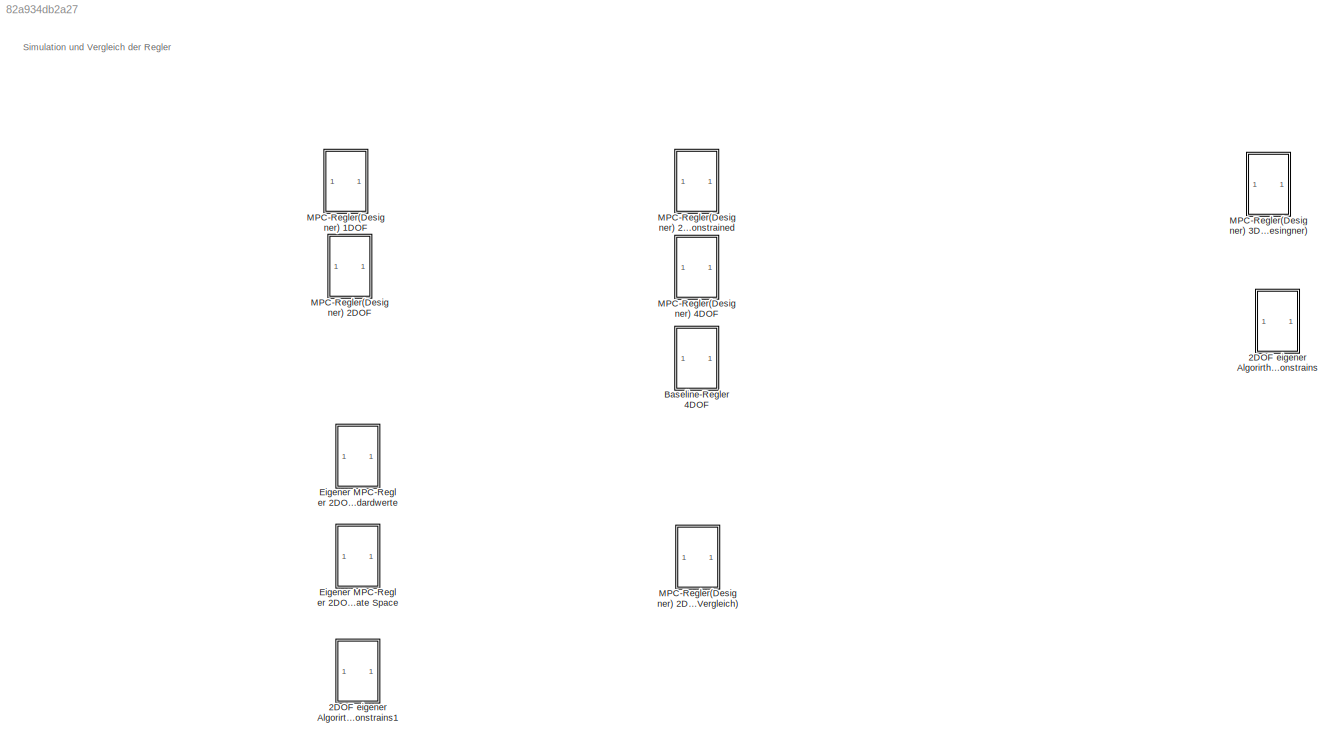
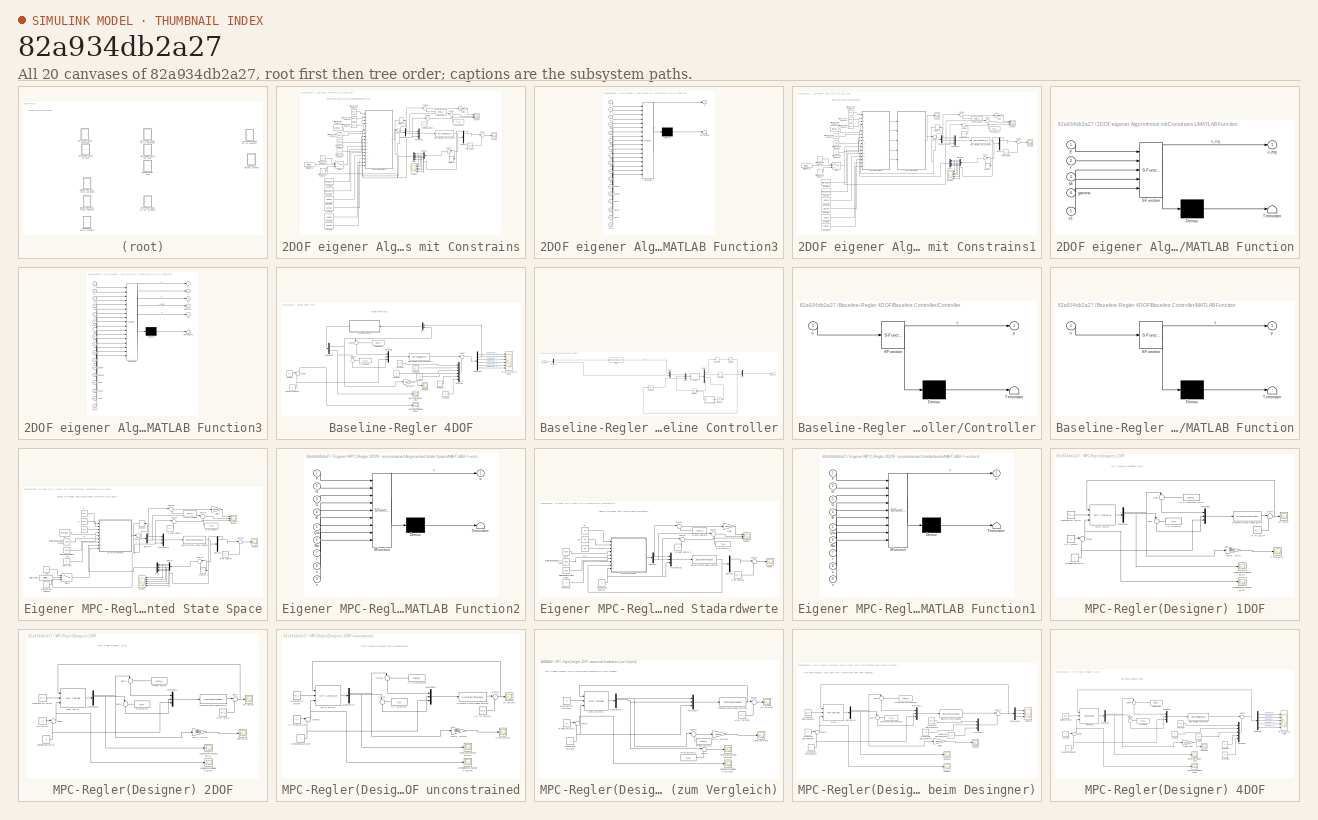
[diagram: thumbnail index - all 20 canvases of the model, root first then tree order]
MODEL slx_82a934db2a27
KIND model
CONFIG AbsTol = auto
CONFIG FixedStep = T_s
CONFIG MaxStep = auto
CONFIG MinStep = auto
CONFIG RelTol = 1e-3
CONFIG SampleTimeConstraint = Unconstrained
CONFIG Solver = FixedStepAuto
CONFIG SolverMode = Auto
CONFIG SolverName = FixedStepAuto
CONFIG StartTime = 0
CONFIG StopTime = 30.0
BLOCK [SubSystem] 2DOF eigener Algorirthmus mit Constrains
  Commented = on
  Ports = []
  RequestExecContextInheritance = off
  Variant = off
BLOCK [Constant] 2DOF eigener Algorirthmus mit Constrains/AP Pitch 2DOFu4
  Value = theta_c
BLOCK [Constant] 2DOF eigener Algorirthmus mit Constrains/AP Tg 2DOFu 4
  Value = T_g_c
BLOCK [Constant] 2DOF eigener Algorirthmus mit Constrains/AP Wind 2DOFu 4
  Value = v_c
BLOCK [Constant] 2DOF eigener Algorirthmus mit Constrains/AP wr 2DOFu4
  Value = w_r_c
BLOCK [Constant] 2DOF eigener Algorirthmus mit Constrains/Constant
  Value = DeltaU2max
BLOCK [Constant] 2DOF eigener Algorirthmus mit Constrains/Constant1
  Value = U2min
BLOCK [Constant] 2DOF eigener Algorirthmus mit Constrains/Constant2
  Value = U2max
BLOCK [Constant] 2DOF eigener Algorirthmus mit Constrains/Constant3
  Value = Y2min
BLOCK [Constant] 2DOF eigener Algorirthmus mit Constrains/Constant4
  Value = Y2max
BLOCK [Constant] 2DOF eigener Algorirthmus mit Constrains/Constant5
  Value = DeltaU2min
BLOCK [Demux] 2DOF eigener Algorirthmus mit Constrains/Demux5
  DisplayOption = bar
  Ports = [1, 4]
BLOCK [Demux] 2DOF eigener Algorirthmus mit Constrains/Demux6
  DisplayOption = bar
  Ports = [1, 4]
BLOCK [Demux] 2DOF eigener Algorirthmus mit Constrains/Demux7
  DisplayOption = bar
  Outputs = 2
  Ports = [1, 2]
BLOCK [DigitalClock] 2DOF eigener Algorirthmus mit Constrains/Digital Clock1
  SampleTime = T_s
BLOCK [DiscreteStateSpace] 2DOF eigener Algorirthmus mit Constrains/Discrete State-Space 2DOFu4
  A = AD2
  B = BD2
  C = C2full
  D = D2full
  SampleTime = T_s
BLOCK [Gain] 2DOF eigener Algorirthmus mit Constrains/Gain3
  Gain = 180/pi
  OutDataTypeStr = Inherit: Inherit via internal rule
  ParamDataTypeStr = Inherit: Inherit via internal rule
  SaturateOnIntegerOverflow = off
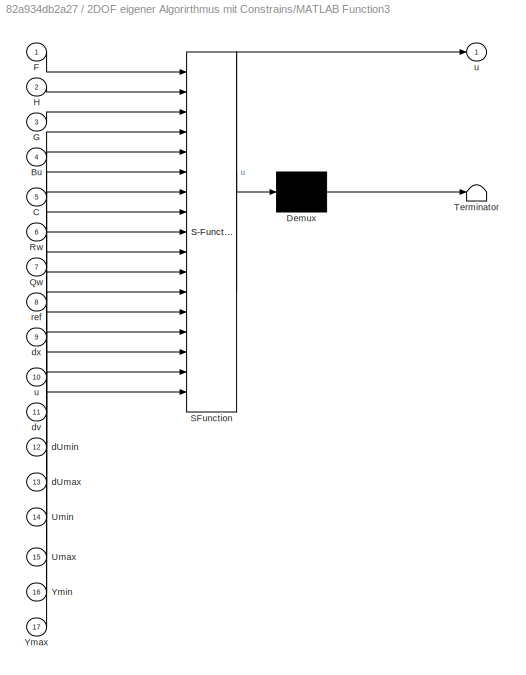
BLOCK [SubSystem] 2DOF eigener Algorirthmus mit Constrains/MATLAB Function3
  ErrorFcn = Stateflow.Translate.translate
  PermitHierarchicalResolution = ExplicitOnly
  Ports = [17, 1]
  RequestExecContextInheritance = off
  SFBlockType = MATLAB Function
  TreatAsAtomicUnit = on
  Variant = off
BLOCK [Demux] 2DOF eigener Algorirthmus mit Constrains/MATLAB Function3/ Demux 
  Outputs = 1
  Ports = [1, 1]
BLOCK [S-Function] 2DOF eigener Algorirthmus mit Constrains/MATLAB Function3/ SFunction 
  EnableBusSupport = on
  FunctionName = sf_sfun
  PortCounts = [17 2]
  Ports = [17, 2]
  SFunctionDeploymentMode = off
  Tag = Stateflow S-Function Simulation_der_Regler 5
BLOCK [Terminator] 2DOF eigener Algorirthmus mit Constrains/MATLAB Function3/ Terminator 
BLOCK [Inport] 2DOF eigener Algorirthmus mit Constrains/MATLAB Function3/Bu
  IconDisplay = Port number
  Port = 4
BLOCK [Inport] 2DOF eigener Algorirthmus mit Constrains/MATLAB Function3/C
  IconDisplay = Port number
  Port = 5
BLOCK [Inport] 2DOF eigener Algorirthmus mit Constrains/MATLAB Function3/F
  IconDisplay = Port number
BLOCK [Inport] 2DOF eigener Algorirthmus mit Constrains/MATLAB Function3/G
  IconDisplay = Port number
  Port = 3
BLOCK [Inport] 2DOF eigener Algorirthmus mit Constrains/MATLAB Function3/H
  IconDisplay = Port number
  Port = 2
BLOCK [Inport] 2DOF eigener Algorirthmus mit Constrains/MATLAB Function3/Qw
  IconDisplay = Port number
  Port = 7
BLOCK [Inport] 2DOF eigener Algorirthmus mit Constrains/MATLAB Function3/Rw
  IconDisplay = Port number
  Port = 6
BLOCK [Inport] 2DOF eigener Algorirthmus mit Constrains/MATLAB Function3/Umax
  IconDisplay = Port number
  Port = 15
BLOCK [Inport] 2DOF eigener Algorirthmus mit Constrains/MATLAB Function3/Umin
  IconDisplay = Port number
  Port = 14
BLOCK [Inport] 2DOF eigener Algorirthmus mit Constrains/MATLAB Function3/Ymax
  IconDisplay = Port number
  Port = 17
BLOCK [Inport] 2DOF eigener Algorirthmus mit Constrains/MATLAB Function3/Ymin
  IconDisplay = Port number
  Port = 16
BLOCK [Inport] 2DOF eigener Algorirthmus mit Constrains/MATLAB Function3/dUmax
  IconDisplay = Port number
  Port = 13
BLOCK [Inport] 2DOF eigener Algorirthmus mit Constrains/MATLAB Function3/dUmin
  IconDisplay = Port number
  Port = 12
BLOCK [Inport] 2DOF eigener Algorirthmus mit Constrains/MATLAB Function3/dv
  IconDisplay = Port number
  Port = 11
BLOCK [Inport] 2DOF eigener Algorirthmus mit Constrains/MATLAB Function3/dx
  IconDisplay = Port number
  Port = 9
BLOCK [Inport] 2DOF eigener Algorirthmus mit Constrains/MATLAB Function3/ref
  IconDisplay = Port number
  Port = 8
BLOCK [Outport] 2DOF eigener Algorirthmus mit Constrains/MATLAB Function3/u
  IconDisplay = Port number
BLOCK [Inport] 2DOF eigener Algorirthmus mit Constrains/MATLAB Function3/u 
  IconDisplay = Port number
  Port = 10
BLOCK [Memory] 2DOF eigener Algorirthmus mit Constrains/Memory2
BLOCK [Memory] 2DOF eigener Algorirthmus mit Constrains/Memory3
BLOCK [Mux] 2DOF eigener Algorirthmus mit Constrains/Mux2
  DisplayOption = bar
  Inputs = 5
  Ports = [5, 1]
BLOCK [Mux] 2DOF eigener Algorirthmus mit Constrains/MuxInput12
  DisplayOption = bar
  Inputs = 3
  Ports = [3, 1]
BLOCK [Scope] 2DOF eigener Algorirthmus mit Constrains/Scope5
  Ports = [1]
  ScopeSpecificationString = Simulink.scopes.TimeScopeBlockCfg('CurrentConfiguration', extmgr.ConfigurationSet(extmgr.Configuration('Core','General UI',true),extmgr.Configuration('Core','Source UI',true),extmgr.Configuration('Sources','WiredSimulink',true,'DataLoggingVariableName','ScopeData1','DataLoggingLimitDataPoints',true,'DataLoggingSaveFormat','Array','DataLoggingDecimation','1','DataLoggingDecimateData',true),extmgr.C...<+1514ch>
BLOCK [Scope] 2DOF eigener Algorirthmus mit Constrains/Scope6
  NumInputPorts = 3
  Ports = [3]
  ScopeSpecificationString = Simulink.scopes.TimeScopeBlockCfg('CurrentConfiguration', extmgr.ConfigurationSet(extmgr.Configuration('Core','General UI',true),extmgr.Configuration('Core','Source UI',true),extmgr.Configuration('Sources','WiredSimulink',true,'DataLoggingVariableName','ScopeData2','DataLoggingLimitDataPoints',true,'DataLoggingSaveFormat','Array','DataLoggingDecimation','1','DataLoggingDecimateData',true),extmgr.C...<+2815ch>
BLOCK [Scope] 2DOF eigener Algorirthmus mit Constrains/Scope7
  NumInputPorts = 5
  Ports = [5]
  ScopeSpecificationString = Simulink.scopes.TimeScopeBlockCfg('CurrentConfiguration', extmgr.ConfigurationSet(extmgr.Configuration('Core','General UI',true),extmgr.Configuration('Core','Source UI',true),extmgr.Configuration('Sources','WiredSimulink',true,'DataLoggingVariableName','ScopeData3','DataLoggingLimitDataPoints',true,'DataLoggingSaveFormat','Array','DataLoggingDecimation','1','DataLoggingDecimateData',true),extmgr.C...<+1534ch>
BLOCK [Sum] 2DOF eigener Algorirthmus mit Constrains/Sum38
  IconShape = round
  InputSameDT = off
  Inputs = |++
  OutDataTypeStr = Inherit: Inherit via internal rule
  Ports = [2, 1]
  SaturateOnIntegerOverflow = off
BLOCK [Sum] 2DOF eigener Algorirthmus mit Constrains/Sum39
  IconShape = round
  InputSameDT = off
  Inputs = |++
  OutDataTypeStr = Inherit: Inherit via internal rule
  Ports = [2, 1]
  SaturateOnIntegerOverflow = off
BLOCK [Sum] 2DOF eigener Algorirthmus mit Constrains/Sum40
  IconShape = round
  InputSameDT = off
  Inputs = |++
  OutDataTypeStr = Inherit: Inherit via internal rule
  Ports = [2, 1]
  SaturateOnIntegerOverflow = off
BLOCK [Sum] 2DOF eigener Algorirthmus mit Constrains/Sum41
  IconShape = round
  InputSameDT = off
  Inputs = |++
  OutDataTypeStr = Inherit: Inherit via internal rule
  Ports = [2, 1]
  SaturateOnIntegerOverflow = off
BLOCK [Sum] 2DOF eigener Algorirthmus mit Constrains/Sum42
  IconShape = round
  InputSameDT = off
  Inputs = |++
  OutDataTypeStr = Inherit: Inherit via internal rule
  Ports = [2, 1]
  SaturateOnIntegerOverflow = off
BLOCK [Sum] 2DOF eigener Algorirthmus mit Constrains/Sum43
  IconShape = round
  InputSameDT = off
  Inputs = |+-
  OutDataTypeStr = Inherit: Inherit via internal rule
  Ports = [2, 1]
  SaturateOnIntegerOverflow = off
BLOCK [Switch] 2DOF eigener Algorirthmus mit Constrains/Switch1
  InputSameDT = off
  SaturateOnIntegerOverflow = off
  Threshold = T_s
BLOCK [Constant] 2DOF eigener Algorirthmus mit Constrains/Windsprung 2DOFu19
  SampleTime = T_s
  Value = 0
  VectorParams1D = off
BLOCK [Constant] 2DOF eigener Algorirthmus mit Constrains/Windsprung 2DOFu20
  Value = F2a
BLOCK [Constant] 2DOF eigener Algorirthmus mit Constrains/Windsprung 2DOFu21
  Value = H2a
BLOCK [Constant] 2DOF eigener Algorirthmus mit Constrains/Windsprung 2DOFu22
  Value = G2a
BLOCK [Constant] 2DOF eigener Algorirthmus mit Constrains/Windsprung 2DOFu23
  Value = BD2ua
BLOCK [Constant] 2DOF eigener Algorirthmus mit Constrains/Windsprung 2DOFu24
  Value = Qw2
BLOCK [Constant] 2DOF eigener Algorirthmus mit Constrains/Windsprung 2DOFu25
  Value = Rw2
BLOCK [Constant] 2DOF eigener Algorirthmus mit Constrains/Windsprung 2DOFu26
  Value = r2
BLOCK [Constant] 2DOF eigener Algorirthmus mit Constrains/Windsprung 2DOFu27
  SampleTime = T_s
  VectorParams1D = off
BLOCK [SubSystem] 2DOF eigener Algorirthmus mit Constrains1
  Ports = []
  RequestExecContextInheritance = off
  Variant = off
BLOCK [Constant] 2DOF eigener Algorirthmus mit Constrains1/AP Pitch 2DOFu4
  Value = theta_c
BLOCK [Constant] 2DOF eigener Algorirthmus mit Constrains1/AP Tg 2DOFu 4
  Value = T_g_c
BLOCK [Constant] 2DOF eigener Algorirthmus mit Constrains1/AP Wind 2DOFu 4
  Value = v_c
BLOCK [Constant] 2DOF eigener Algorirthmus mit Constrains1/AP wr 2DOFu4
  Value = w_r_c
BLOCK [Constant] 2DOF eigener Algorirthmus mit Constrains1/Constant
  Value = DeltaU2max
BLOCK [Constant] 2DOF eigener Algorirthmus mit Constrains1/Constant1
  Value = U2min
BLOCK [Constant] 2DOF eigener Algorirthmus mit Constrains1/Constant2
  Value = U2max
BLOCK [Constant] 2DOF eigener Algorirthmus mit Constrains1/Constant3
  Value = Y2min
BLOCK [Constant] 2DOF eigener Algorirthmus mit Constrains1/Constant4
  Value = Y2max
BLOCK [Constant] 2DOF eigener Algorirthmus mit Constrains1/Constant5
  Value = DeltaU2min
BLOCK [Demux] 2DOF eigener Algorirthmus mit Constrains1/Demux5
  DisplayOption = bar
  Ports = [1, 4]
BLOCK [Demux] 2DOF eigener Algorirthmus mit Constrains1/Demux6
  DisplayOption = bar
  Ports = [1, 4]
BLOCK [Demux] 2DOF eigener Algorirthmus mit Constrains1/Demux7
  DisplayOption = bar
  Outputs = 2
  Ports = [1, 2]
BLOCK [DigitalClock] 2DOF eigener Algorirthmus mit Constrains1/Digital Clock1
  SampleTime = T_s
BLOCK [DiscreteStateSpace] 2DOF eigener Algorirthmus mit Constrains1/Discrete State-Space 2DOFu4
  A = AD2
  B = BD2
  C = C2full
  D = D2full
  SampleTime = T_s
BLOCK [Gain] 2DOF eigener Algorirthmus mit Constrains1/Gain3
  Gain = 180/pi
  OutDataTypeStr = Inherit: Inherit via internal rule
  ParamDataTypeStr = Inherit: Inherit via internal rule
  SaturateOnIntegerOverflow = off
BLOCK [SubSystem] 2DOF eigener Algorirthmus mit Constrains1/MATLAB Function
  ErrorFcn = Stateflow.Translate.translate
  PermitHierarchicalResolution = ExplicitOnly
  Ports = [5, 1]
  RequestExecContextInheritance = off
  SFBlockType = MATLAB Function
  TreatAsAtomicUnit = on
  Variant = off
BLOCK [Demux] 2DOF eigener Algorirthmus mit Constrains1/MATLAB Function/ Demux 
  Outputs = 1
  Ports = [1, 1]
BLOCK [S-Function] 2DOF eigener Algorirthmus mit Constrains1/MATLAB Function/ SFunction 
  EnableBusSupport = on
  FunctionName = sf_sfun
  PortCounts = [5 2]
  Ports = [5, 2]
  SFunctionDeploymentMode = off
  Tag = Stateflow S-Function Simulation_der_Regler 7
BLOCK [Terminator] 2DOF eigener Algorirthmus mit Constrains1/MATLAB Function/ Terminator 
BLOCK [Inport] 2DOF eigener Algorirthmus mit Constrains1/MATLAB Function/E
  IconDisplay = Port number
BLOCK [Inport] 2DOF eigener Algorirthmus mit Constrains1/MATLAB Function/M
  IconDisplay = Port number
  Port = 3
BLOCK [Inport] 2DOF eigener Algorirthmus mit Constrains1/MATLAB Function/f
  IconDisplay = Port number
  Port = 2
BLOCK [Inport] 2DOF eigener Algorirthmus mit Constrains1/MATLAB Function/gamma
  IconDisplay = Port number
  Port = 4
BLOCK [Inport] 2DOF eigener Algorirthmus mit Constrains1/MATLAB Function/s1
  IconDisplay = Port number
  Port = 5
BLOCK [Outport] 2DOF eigener Algorirthmus mit Constrains1/MATLAB Function/u_erg
  IconDisplay = Port number
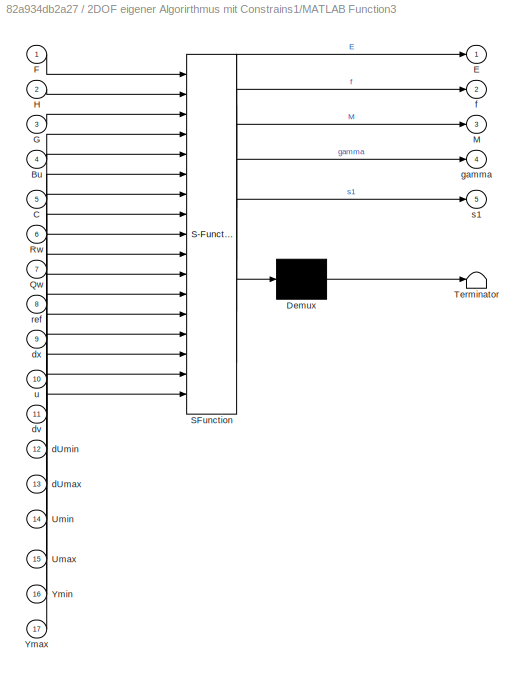
BLOCK [SubSystem] 2DOF eigener Algorirthmus mit Constrains1/MATLAB Function3
  ErrorFcn = Stateflow.Translate.translate
  PermitHierarchicalResolution = ExplicitOnly
  Ports = [17, 5]
  RequestExecContextInheritance = off
  SFBlockType = MATLAB Function
  TreatAsAtomicUnit = on
  Variant = off
BLOCK [Demux] 2DOF eigener Algorirthmus mit Constrains1/MATLAB Function3/ Demux 
  Outputs = 1
  Ports = [1, 1]
BLOCK [S-Function] 2DOF eigener Algorirthmus mit Constrains1/MATLAB Function3/ SFunction 
  EnableBusSupport = on
  FunctionName = sf_sfun
  PortCounts = [17 6]
  Ports = [17, 6]
  SFunctionDeploymentMode = off
  Tag = Stateflow S-Function Simulation_der_Regler 6
BLOCK [Terminator] 2DOF eigener Algorirthmus mit Constrains1/MATLAB Function3/ Terminator 
BLOCK [Inport] 2DOF eigener Algorirthmus mit Constrains1/MATLAB Function3/Bu
  IconDisplay = Port number
  Port = 4
BLOCK [Inport] 2DOF eigener Algorirthmus mit Constrains1/MATLAB Function3/C
  IconDisplay = Port number
  Port = 5
BLOCK [Outport] 2DOF eigener Algorirthmus mit Constrains1/MATLAB Function3/E
  IconDisplay = Port number
BLOCK [Inport] 2DOF eigener Algorirthmus mit Constrains1/MATLAB Function3/F
  IconDisplay = Port number
BLOCK [Inport] 2DOF eigener Algorirthmus mit Constrains1/MATLAB Function3/G
  IconDisplay = Port number
  Port = 3
BLOCK [Inport] 2DOF eigener Algorirthmus mit Constrains1/MATLAB Function3/H
  IconDisplay = Port number
  Port = 2
BLOCK [Outport] 2DOF eigener Algorirthmus mit Constrains1/MATLAB Function3/M
  IconDisplay = Port number
  Port = 3
BLOCK [Inport] 2DOF eigener Algorirthmus mit Constrains1/MATLAB Function3/Qw
  IconDisplay = Port number
  Port = 7
BLOCK [Inport] 2DOF eigener Algorirthmus mit Constrains1/MATLAB Function3/Rw
  IconDisplay = Port number
  Port = 6
BLOCK [Inport] 2DOF eigener Algorirthmus mit Constrains1/MATLAB Function3/Umax
  IconDisplay = Port number
  Port = 15
BLOCK [Inport] 2DOF eigener Algorirthmus mit Constrains1/MATLAB Function3/Umin
  IconDisplay = Port number
  Port = 14
BLOCK [Inport] 2DOF eigener Algorirthmus mit Constrains1/MATLAB Function3/Ymax
  IconDisplay = Port number
  Port = 17
BLOCK [Inport] 2DOF eigener Algorirthmus mit Constrains1/MATLAB Function3/Ymin
  IconDisplay = Port number
  Port = 16
BLOCK [Inport] 2DOF eigener Algorirthmus mit Constrains1/MATLAB Function3/dUmax
  IconDisplay = Port number
  Port = 13
BLOCK [Inport] 2DOF eigener Algorirthmus mit Constrains1/MATLAB Function3/dUmin
  IconDisplay = Port number
  Port = 12
BLOCK [Inport] 2DOF eigener Algorirthmus mit Constrains1/MATLAB Function3/dv
  IconDisplay = Port number
  Port = 11
BLOCK [Inport] 2DOF eigener Algorirthmus mit Constrains1/MATLAB Function3/dx
  IconDisplay = Port number
  Port = 9
BLOCK [Outport] 2DOF eigener Algorirthmus mit Constrains1/MATLAB Function3/f
  IconDisplay = Port number
  Port = 2
BLOCK [Outport] 2DOF eigener Algorirthmus mit Constrains1/MATLAB Function3/gamma
  IconDisplay = Port number
  Port = 4
BLOCK [Inport] 2DOF eigener Algorirthmus mit Constrains1/MATLAB Function3/ref
  IconDisplay = Port number
  Port = 8
BLOCK [Outport] 2DOF eigener Algorirthmus mit Constrains1/MATLAB Function3/s1
  IconDisplay = Port number
  Port = 5
BLOCK [Inport] 2DOF eigener Algorirthmus mit Constrains1/MATLAB Function3/u
  IconDisplay = Port number
  Port = 10
BLOCK [Memory] 2DOF eigener Algorirthmus mit Constrains1/Memory2
BLOCK [Memory] 2DOF eigener Algorirthmus mit Constrains1/Memory3
BLOCK [Mux] 2DOF eigener Algorirthmus mit Constrains1/Mux2
  DisplayOption = bar
  Inputs = 5
  Ports = [5, 1]
BLOCK [Mux] 2DOF eigener Algorirthmus mit Constrains1/MuxInput12
  DisplayOption = bar
  Inputs = 3
  Ports = [3, 1]
BLOCK [Scope] 2DOF eigener Algorirthmus mit Constrains1/Scope1
  Ports = [1]
  ScopeSpecificationString = Simulink.scopes.TimeScopeBlockCfg('CurrentConfiguration', extmgr.ConfigurationSet(extmgr.Configuration('Core','General UI',true),extmgr.Configuration('Core','Source UI',true),extmgr.Configuration('Sources','WiredSimulink',true,'DataLoggingVariableName','ScopeData1','DataLoggingLimitDataPoints',true,'DataLoggingSaveFormat','Array','DataLoggingDecimation','1','DataLoggingDecimateData',true),extmgr.C...<+1573ch>
BLOCK [Scope] 2DOF eigener Algorirthmus mit Constrains1/Scope5
  Ports = [1]
  ScopeSpecificationString = Simulink.scopes.TimeScopeBlockCfg('CurrentConfiguration', extmgr.ConfigurationSet(extmgr.Configuration('Core','General UI',true),extmgr.Configuration('Core','Source UI',true),extmgr.Configuration('Sources','WiredSimulink',true,'DataLoggingVariableName','ScopeData1','DataLoggingLimitDataPoints',true,'DataLoggingSaveFormat','Array','DataLoggingDecimation','1','DataLoggingDecimateData',true),extmgr.C...<+1539ch>
BLOCK [Scope] 2DOF eigener Algorirthmus mit Constrains1/Scope6
  NumInputPorts = 3
  Ports = [3]
  ScopeSpecificationString = Simulink.scopes.TimeScopeBlockCfg('CurrentConfiguration', extmgr.ConfigurationSet(extmgr.Configuration('Core','General UI',true),extmgr.Configuration('Core','Source UI',true),extmgr.Configuration('Sources','WiredSimulink',true,'DataLoggingVariableName','ScopeData2','DataLoggingLimitDataPoints',true,'DataLoggingSaveFormat','Array','DataLoggingDecimation','1','DataLoggingDecimateData',true),extmgr.C...<+3224ch>
BLOCK [Scope] 2DOF eigener Algorirthmus mit Constrains1/Scope7
  NumInputPorts = 5
  Ports = [5]
  ScopeSpecificationString = Simulink.scopes.TimeScopeBlockCfg('CurrentConfiguration', extmgr.ConfigurationSet(extmgr.Configuration('Core','General UI',true),extmgr.Configuration('Core','Source UI',true),extmgr.Configuration('Sources','WiredSimulink',true,'DataLoggingVariableName','ScopeData3','DataLoggingLimitDataPoints',true,'DataLoggingSaveFormat','Array','DataLoggingDecimation','1','DataLoggingDecimateData',true),extmgr.C...<+4944ch>
BLOCK [Sum] 2DOF eigener Algorirthmus mit Constrains1/Sum38
  IconShape = round
  InputSameDT = off
  Inputs = |++
  OutDataTypeStr = Inherit: Inherit via internal rule
  Ports = [2, 1]
  SaturateOnIntegerOverflow = off
BLOCK [Sum] 2DOF eigener Algorirthmus mit Constrains1/Sum39
  IconShape = round
  InputSameDT = off
  Inputs = |++
  OutDataTypeStr = Inherit: Inherit via internal rule
  Ports = [2, 1]
  SaturateOnIntegerOverflow = off
BLOCK [Sum] 2DOF eigener Algorirthmus mit Constrains1/Sum40
  IconShape = round
  InputSameDT = off
  Inputs = |++
  OutDataTypeStr = Inherit: Inherit via internal rule
  Ports = [2, 1]
  SaturateOnIntegerOverflow = off
BLOCK [Sum] 2DOF eigener Algorirthmus mit Constrains1/Sum41
  IconShape = round
  InputSameDT = off
  Inputs = |++
  OutDataTypeStr = Inherit: Inherit via internal rule
  Ports = [2, 1]
  SaturateOnIntegerOverflow = off
BLOCK [Sum] 2DOF eigener Algorirthmus mit Constrains1/Sum42
  IconShape = round
  InputSameDT = off
  Inputs = |++
  OutDataTypeStr = Inherit: Inherit via internal rule
  Ports = [2, 1]
  SaturateOnIntegerOverflow = off
BLOCK [Sum] 2DOF eigener Algorirthmus mit Constrains1/Sum43
  IconShape = round
  InputSameDT = off
  Inputs = |+-
  OutDataTypeStr = Inherit: Inherit via internal rule
  Ports = [2, 1]
  SaturateOnIntegerOverflow = off
BLOCK [Switch] 2DOF eigener Algorirthmus mit Constrains1/Switch1
  InputSameDT = off
  SaturateOnIntegerOverflow = off
  Threshold = 1
BLOCK [Constant] 2DOF eigener Algorirthmus mit Constrains1/Windsprung 2DOFu19
  SampleTime = T_s
  VectorParams1D = off
BLOCK [Constant] 2DOF eigener Algorirthmus mit Constrains1/Windsprung 2DOFu20
  Value = F2a
BLOCK [Constant] 2DOF eigener Algorirthmus mit Constrains1/Windsprung 2DOFu21
  Value = H2a
BLOCK [Constant] 2DOF eigener Algorirthmus mit Constrains1/Windsprung 2DOFu22
  Value = G2a
BLOCK [Constant] 2DOF eigener Algorirthmus mit Constrains1/Windsprung 2DOFu23
  Value = BD2ua
BLOCK [Constant] 2DOF eigener Algorirthmus mit Constrains1/Windsprung 2DOFu24
  Value = Qw2
BLOCK [Constant] 2DOF eigener Algorirthmus mit Constrains1/Windsprung 2DOFu25
  Value = Rw2
BLOCK [Constant] 2DOF eigener Algorirthmus mit Constrains1/Windsprung 2DOFu26
  Value = r2
BLOCK [Constant] 2DOF eigener Algorirthmus mit Constrains1/Windsprung 2DOFu27
  SampleTime = T_s
  Value = 0
  VectorParams1D = off
BLOCK [SubSystem] Baseline-Regler 4DOF
  Ports = []
  RequestExecContextInheritance = off
  Variant = off
BLOCK [Constant] Baseline-Regler 4DOF/AP Pitch Base
  Value = theta_c
BLOCK [Constant] Baseline-Regler 4DOF/AP Tg Base
  Value = T_g_c
BLOCK [Constant] Baseline-Regler 4DOF/AP v Base
  Value = v_c
BLOCK [Constant] Baseline-Regler 4DOF/AP vb Base
  Value = 0
BLOCK [Constant] Baseline-Regler 4DOF/AP vt Base
  Value = 0
BLOCK [Constant] Baseline-Regler 4DOF/AP wg Base
  Value = w_g_c
BLOCK [Constant] Baseline-Regler 4DOF/AP wr Base
  Value = w_r_c
BLOCK [Constant] Baseline-Regler 4DOF/AP yb Base
  Value = y_b_c
BLOCK [Constant] Baseline-Regler 4DOF/AP yt Base
  Value = y_t_c
BLOCK [SubSystem] Baseline-Regler 4DOF/Baseline Controller
  Ports = [1, 1]
  RequestExecContextInheritance = off
  Variant = off
BLOCK [SubSystem] Baseline-Regler 4DOF/Baseline Controller/Controller
  ErrorFcn = Stateflow.Translate.translate
  PermitHierarchicalResolution = ExplicitOnly
  Ports = [1, 1]
  RequestExecContextInheritance = off
  SFBlockType = MATLAB Function
  TreatAsAtomicUnit = on
  Variant = off
BLOCK [Demux] Baseline-Regler 4DOF/Baseline Controller/Controller/ Demux 
  Outputs = 1
  Ports = [1, 1]
BLOCK [S-Function] Baseline-Regler 4DOF/Baseline Controller/Controller/ SFunction 
  EnableBusSupport = on
  FunctionName = sf_sfun
  Parameters = para_cntrl
  PortCounts = [1 2]
  Ports = [1, 2]
  SFunctionDeploymentMode = off
  Tag = Stateflow S-Function Simulation_der_Regler 1
BLOCK [Terminator] Baseline-Regler 4DOF/Baseline Controller/Controller/ Terminator 
BLOCK [Inport] Baseline-Regler 4DOF/Baseline Controller/Controller/u
  IconDisplay = Port number
BLOCK [Outport] Baseline-Regler 4DOF/Baseline Controller/Controller/y
  IconDisplay = Port number
BLOCK [Demux] Baseline-Regler 4DOF/Baseline Controller/Demux
  DisplayOption = bar
  Ports = [1, 4]
BLOCK [Demux] Baseline-Regler 4DOF/Baseline Controller/Demux1
  DisplayOption = bar
  Outputs = 2
  Ports = [1, 2]
BLOCK [DiscreteStateSpace] Baseline-Regler 4DOF/Baseline Controller/Filter wg
  A = exp(-2*pi*para_mdl.dT*para_cntrl.filter.fc)
  B = 1-exp(-2*pi*para_mdl.dT*para_cntrl.filter.fc)
  C = exp(-2*pi*para_mdl.dT*para_cntrl.filter.fc)
  D = 1-exp(-2*pi*para_mdl.dT*para_cntrl.filter.fc)
  SampleTime = para_mdl.dT
  X0 = para_cntrl.ref.wg_d
BLOCK [Integrator] Baseline-Regler 4DOF/Baseline Controller/Integrator
  ExternalReset = rising
  InitialCondition = para_cntrl.initial.int_PCntrl
  Ports = [2, 1]
BLOCK [SubSystem] Baseline-Regler 4DOF/Baseline Controller/MATLAB Function
  ErrorFcn = Stateflow.Translate.translate
  PermitHierarchicalResolution = ExplicitOnly
  Ports = [1, 1]
  RequestExecContextInheritance = off
  SFBlockType = MATLAB Function
  TreatAsAtomicUnit = on
  Variant = off
BLOCK [Demux] Baseline-Regler 4DOF/Baseline Controller/MATLAB Function/ Demux 
  Outputs = 1
  Ports = [1, 1]
BLOCK [S-Function] Baseline-Regler 4DOF/Baseline Controller/MATLAB Function/ SFunction 
  EnableBusSupport = on
  FunctionName = sf_sfun
  PortCounts = [1 2]
  Ports = [1, 2]
  SFunctionDeploymentMode = off
  Tag = Stateflow S-Function Simulation_der_Regler 3
BLOCK [Terminator] Baseline-Regler 4DOF/Baseline Controller/MATLAB Function/ Terminator 
BLOCK [Inport] Baseline-Regler 4DOF/Baseline Controller/MATLAB Function/u
  IconDisplay = Port number
BLOCK [Outport] Baseline-Regler 4DOF/Baseline Controller/MATLAB Function/y
  IconDisplay = Port number
BLOCK [Mux] Baseline-Regler 4DOF/Baseline Controller/Mux
  DisplayOption = bar
  Inputs = 2
  Ports = [2, 1]
BLOCK [Mux] Baseline-Regler 4DOF/Baseline Controller/Mux1
  DisplayOption = bar
  Inputs = 3
  Ports = [3, 1]
BLOCK [Mux] Baseline-Regler 4DOF/Baseline Controller/Mux2
  DisplayOption = bar
  Inputs = 2
  Ports = [2, 1]
BLOCK [RateLimiter] Baseline-Regler 4DOF/Baseline Controller/Rate Limiter
  FallingSlewLimit = -para_cntrl.limits.beta_rate/180*pi
  RisingSlewLimit = para_cntrl.limits.beta_rate/180*pi
  SampleTimeMode = inherited
BLOCK [RateLimiter] Baseline-Regler 4DOF/Baseline Controller/Rate Limiter1
  FallingSlewLimit = -para_cntrl.limits.Tg_rate
  RisingSlewLimit = para_cntrl.limits.Tg_rate
  SampleTimeMode = inherited
BLOCK [Saturate] Baseline-Regler 4DOF/Baseline Controller/Saturation
  InputPortMap = u0
  LowerLimit = 0
  Ports = [1, 1]
  UpperLimit = 90/180*pi
BLOCK [UnitDelay] Baseline-Regler 4DOF/Baseline Controller/Unit Delay
  InputProcessing = Elements as channels (sample based)
  SampleTime = para_mdl.dT
BLOCK [UnitDelay] Baseline-Regler 4DOF/Baseline Controller/Unit Delay1
  InputProcessing = Elements as channels (sample based)
  SampleTime = para_mdl.dT
BLOCK [Outport] Baseline-Regler 4DOF/Baseline Controller/beta*_Tg*
  IconDisplay = Port number
BLOCK [Inport] Baseline-Regler 4DOF/Baseline Controller/wg_beta
  IconDisplay = Port number
BLOCK [Demux] Baseline-Regler 4DOF/DemuxMV8
  DisplayOption = bar
  Outputs = 2
  Ports = [1, 2]
BLOCK [Demux] Baseline-Regler 4DOF/DemuxMV9
  DisplayOption = bar
  Outputs = 6
  Ports = [1, 6]
BLOCK [DiscreteStateSpace] Baseline-Regler 4DOF/Discrete State-Space 4DOF Base
  A = AD4
  B = BD4
  C = C4_base
  D = D4_base
  SampleTime = T_s
BLOCK [Scope] Baseline-Regler 4DOF/Generatormoment Base
  Ports = [1]
  ScopeSpecificationString = C++SS(StrPVP('SaveName','ScopeData1'),StrPVP('LimitDataPoints','on'),StrPVP('DataFormat','Array'),StrPVP('Decimation','1'),StrPVP('BlockParamSampleInput','off'))
BLOCK [Mux] Baseline-Regler 4DOF/Mux1
  DisplayOption = bar
  Inputs = 2
  Ports = [2, 1]
BLOCK [Mux] Baseline-Regler 4DOF/MuxInput8
  DisplayOption = bar
  Inputs = 3
  Ports = [3, 1]
BLOCK [Mux] Baseline-Regler 4DOF/MuxInput9
  DisplayOption = bar
  Inputs = 6
  Ports = [6, 1]
BLOCK [Scope] Baseline-Regler 4DOF/Pitch Base
  Ports = [1]
  ScopeSpecificationString = C++SS(StrPVP('SaveName','ScopeData4'),StrPVP('LimitDataPoints','on'),StrPVP('DataFormat','Array'),StrPVP('Decimation','1'),StrPVP('BlockParamSampleInput','off'))
BLOCK [Sum] Baseline-Regler 4DOF/Sum26
  IconShape = round
  InputSameDT = off
  Inputs = |++
  OutDataTypeStr = Inherit: Inherit via internal rule
  Ports = [2, 1]
  SaturateOnIntegerOverflow = off
BLOCK [Sum] Baseline-Regler 4DOF/Sum27
  IconShape = round
  InputSameDT = off
  Inputs = |++
  OutDataTypeStr = Inherit: Inherit via internal rule
  Ports = [2, 1]
  SaturateOnIntegerOverflow = off
BLOCK [Sum] Baseline-Regler 4DOF/Sum28
  IconShape = round
  InputSameDT = off
  Inputs = |+-
  OutDataTypeStr = Inherit: Inherit via internal rule
  Ports = [2, 1]
  SaturateOnIntegerOverflow = off
BLOCK [Sum] Baseline-Regler 4DOF/Sum29
  IconShape = round
  InputSameDT = off
  Inputs = |+-
  OutDataTypeStr = Inherit: Inherit via internal rule
  Ports = [2, 1]
  SaturateOnIntegerOverflow = off
BLOCK [Scope] Baseline-Regler 4DOF/Windgeschwindigkeit Base
  Ports = [1]
  ScopeSpecificationString = C++SS(StrPVP('SaveName','ScopeData2'),StrPVP('LimitDataPoints','on'),StrPVP('DataFormat','Array'),StrPVP('Decimation','1'),StrPVP('BlockParamSampleInput','off'))
BLOCK [Constant] Baseline-Regler 4DOF/Windsprung Base
BLOCK [Gain] Baseline-Regler 4DOF/rad to ° Base
  Gain = 180/pi
  OutDataTypeStr = Inherit: Inherit via internal rule
  ParamDataTypeStr = Inherit: Inherit via internal rule
  SaturateOnIntegerOverflow = off
BLOCK [Scope] Baseline-Regler 4DOF/wr_wg_vt_yt_vb_yb Base
  NumInputPorts = 6
  Ports = [6]
  ScopeSpecificationString = Simulink.scopes.TimeScopeBlockCfg('CurrentConfiguration', extmgr.ConfigurationSet(extmgr.Configuration('Core','General UI',true),extmgr.Configuration('Core','Source UI',true),extmgr.Configuration('Sources','WiredSimulink',true,'DataLoggingVariableName','ScopeData3'),extmgr.Configuration('Visuals','Time Domain',true,'SerializedDisplays',{struct('MinYLimReal','1.2548','MaxYLimReal','1.35743','YLabel...<+4820ch>
BLOCK [SubSystem] Eigener MPC-Regler 2DOF unconstrained Argumented State Space
  Ports = []
  RequestExecContextInheritance = off
  Variant = off
BLOCK [Constant] Eigener MPC-Regler 2DOF unconstrained Argumented State Space/AP Pitch 2DOFu3
  Value = theta_c
BLOCK [Constant] Eigener MPC-Regler 2DOF unconstrained Argumented State Space/AP Tg 2DOFu 3
  Value = T_g_c
BLOCK [Constant] Eigener MPC-Regler 2DOF unconstrained Argumented State Space/AP Wind 2DOFu 3
  Value = v_c
BLOCK [Constant] Eigener MPC-Regler 2DOF unconstrained Argumented State Space/AP wr 2DOFu3
  Value = w_r_c
BLOCK [Constant] Eigener MPC-Regler 2DOF unconstrained Argumented State Space/Bu 
  Value = BD2ua
BLOCK [Demux] Eigener MPC-Regler 2DOF unconstrained Argumented State Space/Demux
  DisplayOption = bar
  Ports = [1, 4]
BLOCK [Demux] Eigener MPC-Regler 2DOF unconstrained Argumented State Space/Demux3
  DisplayOption = bar
  Ports = [1, 4]
BLOCK [Demux] Eigener MPC-Regler 2DOF unconstrained Argumented State Space/Demux4
  DisplayOption = bar
  Outputs = 2
  Ports = [1, 2]
BLOCK [DigitalClock] Eigener MPC-Regler 2DOF unconstrained Argumented State Space/Digital Clock
  SampleTime = T_s
BLOCK [DiscreteStateSpace] Eigener MPC-Regler 2DOF unconstrained Argumented State Space/Discrete State-Space 2DOFu3
  A = AD2
  B = BD2
  C = C2full
  D = D2full
  SampleTime = T_s
BLOCK [Constant] Eigener MPC-Regler 2DOF unconstrained Argumented State Space/F 
  Value = F2a
BLOCK [Constant] Eigener MPC-Regler 2DOF unconstrained Argumented State Space/G 
  Value = G2a
BLOCK [Gain] Eigener MPC-Regler 2DOF unconstrained Argumented State Space/Gain1
  Gain = 180/pi
  OutDataTypeStr = Inherit: Inherit via internal rule
  ParamDataTypeStr = Inherit: Inherit via internal rule
  SaturateOnIntegerOverflow = off
BLOCK [Constant] Eigener MPC-Regler 2DOF unconstrained Argumented State Space/H 
  Value = H2a
BLOCK [SubSystem] Eigener MPC-Regler 2DOF unconstrained Argumented State Space/MATLAB Function2
  ErrorFcn = Stateflow.Translate.translate
  PermitHierarchicalResolution = ExplicitOnly
  Ports = [9, 1]
  RequestExecContextInheritance = off
  SFBlockType = MATLAB Function
  TreatAsAtomicUnit = on
  Variant = off
BLOCK [Demux] Eigener MPC-Regler 2DOF unconstrained Argumented State Space/MATLAB Function2/ Demux 
  Outputs = 1
  Ports = [1, 1]
BLOCK [S-Function] Eigener MPC-Regler 2DOF unconstrained Argumented State Space/MATLAB Function2/ SFunction 
  EnableBusSupport = on
  FunctionName = sf_sfun
  PortCounts = [9 2]
  Ports = [9, 2]
  SFunctionDeploymentMode = off
  Tag = Stateflow S-Function Simulation_der_Regler 2
BLOCK [Terminator] Eigener MPC-Regler 2DOF unconstrained Argumented State Space/MATLAB Function2/ Terminator 
BLOCK [Inport] Eigener MPC-Regler 2DOF unconstrained Argumented State Space/MATLAB Function2/B
  IconDisplay = Port number
  Port = 4
BLOCK [Inport] Eigener MPC-Regler 2DOF unconstrained Argumented State Space/MATLAB Function2/F
  IconDisplay = Port number
BLOCK [Inport] Eigener MPC-Regler 2DOF unconstrained Argumented State Space/MATLAB Function2/G
  IconDisplay = Port number
  Port = 3
BLOCK [Inport] Eigener MPC-Regler 2DOF unconstrained Argumented State Space/MATLAB Function2/H
  IconDisplay = Port number
  Port = 2
BLOCK [Inport] Eigener MPC-Regler 2DOF unconstrained Argumented State Space/MATLAB Function2/Qw
  IconDisplay = Port number
  Port = 5
BLOCK [Inport] Eigener MPC-Regler 2DOF unconstrained Argumented State Space/MATLAB Function2/Rw
  IconDisplay = Port number
  Port = 6
BLOCK [Inport] Eigener MPC-Regler 2DOF unconstrained Argumented State Space/MATLAB Function2/r
  IconDisplay = Port number
  Port = 7
BLOCK [Outport] Eigener MPC-Regler 2DOF unconstrained Argumented State Space/MATLAB Function2/u
  IconDisplay = Port number
BLOCK [Inport] Eigener MPC-Regler 2DOF unconstrained Argumented State Space/MATLAB Function2/v
  IconDisplay = Port number
  Port = 9
BLOCK [Inport] Eigener MPC-Regler 2DOF unconstrained Argumented State Space/MATLAB Function2/x
  IconDisplay = Port number
  Port = 8
BLOCK [Memory] Eigener MPC-Regler 2DOF unconstrained Argumented State Space/Memory
BLOCK [Memory] Eigener MPC-Regler 2DOF unconstrained Argumented State Space/Memory1
BLOCK [Mux] Eigener MPC-Regler 2DOF unconstrained Argumented State Space/Mux
  DisplayOption = bar
  Inputs = 5
  Ports = [5, 1]
BLOCK [Mux] Eigener MPC-Regler 2DOF unconstrained Argumented State Space/MuxInput11
  DisplayOption = bar
  Inputs = 3
  Ports = [3, 1]
BLOCK [Constant] Eigener MPC-Regler 2DOF unconstrained Argumented State Space/Refer enz
  Value = r2
BLOCK [Scope] Eigener MPC-Regler 2DOF unconstrained Argumented State Space/Scope2
  Ports = [1]
  ScopeSpecificationString = Simulink.scopes.TimeScopeBlockCfg('CurrentConfiguration', extmgr.ConfigurationSet(extmgr.Configuration('Core','General UI',true),extmgr.Configuration('Core','Source UI',true),extmgr.Configuration('Sources','WiredSimulink',true,'DataLoggingVariableName','ScopeData1'),extmgr.Configuration('Visuals','Time Domain',true,'SerializedDisplays',{struct('MinYLimReal','1.26674','MaxYLimReal','1.26944','YLabe...<+1362ch>
BLOCK [Scope] Eigener MPC-Regler 2DOF unconstrained Argumented State Space/Scope3
  NumInputPorts = 3
  Ports = [3]
  ScopeSpecificationString = Simulink.scopes.TimeScopeBlockCfg('CurrentConfiguration', extmgr.ConfigurationSet(extmgr.Configuration('Core','General UI',true),extmgr.Configuration('Core','Source UI',true),extmgr.Configuration('Sources','WiredSimulink',true,'DataLoggingVariableName','ScopeData2'),extmgr.Configuration('Visuals','Time Domain',true,'SerializedDisplays',{struct('MinYLimReal','6.90685','MaxYLimReal','8.4434','YLabel...<+2682ch>
BLOCK [Scope] Eigener MPC-Regler 2DOF unconstrained Argumented State Space/Scope4
  NumInputPorts = 5
  Ports = [5]
  ScopeSpecificationString = Simulink.scopes.TimeScopeBlockCfg('CurrentConfiguration', extmgr.ConfigurationSet(extmgr.Configuration('Core','General UI',true),extmgr.Configuration('Core','Source UI',true),extmgr.Configuration('Sources','WiredSimulink',true,'DataLoggingVariableName','ScopeData3'),extmgr.Configuration('Visuals','Time Domain',true,'SerializedDisplays',{struct('MinYLimReal','-0.00332','MaxYLimReal','0.00063','YLab...<+5093ch>
BLOCK [Constant] Eigener MPC-Regler 2DOF unconstrained Argumented State Space/Sollgräößengewichtung
  Value = Rw2
BLOCK [Constant] Eigener MPC-Regler 2DOF unconstrained Argumented State Space/StellgräößenGewichtung 
  Value = Qw2
BLOCK [Sum] Eigener MPC-Regler 2DOF unconstrained Argumented State Space/Sum32
  IconShape = round
  InputSameDT = off
  Inputs = |++
  OutDataTypeStr = Inherit: Inherit via internal rule
  Ports = [2, 1]
  SaturateOnIntegerOverflow = off
BLOCK [Sum] Eigener MPC-Regler 2DOF unconstrained Argumented State Space/Sum33
  IconShape = round
  InputSameDT = off
  Inputs = |++
  OutDataTypeStr = Inherit: Inherit via internal rule
  Ports = [2, 1]
  SaturateOnIntegerOverflow = off
BLOCK [Sum] Eigener MPC-Regler 2DOF unconstrained Argumented State Space/Sum34
  IconShape = round
  InputSameDT = off
  Inputs = |++
  OutDataTypeStr = Inherit: Inherit via internal rule
  Ports = [2, 1]
  SaturateOnIntegerOverflow = off
BLOCK [Sum] Eigener MPC-Regler 2DOF unconstrained Argumented State Space/Sum35
  IconShape = round
  InputSameDT = off
  Inputs = |++
  OutDataTypeStr = Inherit: Inherit via internal rule
  Ports = [2, 1]
  SaturateOnIntegerOverflow = off
BLOCK [Sum] Eigener MPC-Regler 2DOF unconstrained Argumented State Space/Sum36
  IconShape = round
  InputSameDT = off
  Inputs = |++
  OutDataTypeStr = Inherit: Inherit via internal rule
  Ports = [2, 1]
  SaturateOnIntegerOverflow = off
BLOCK [Sum] Eigener MPC-Regler 2DOF unconstrained Argumented State Space/Sum37
  IconShape = round
  InputSameDT = off
  Inputs = |+-
  OutDataTypeStr = Inherit: Inherit via internal rule
  Ports = [2, 1]
  SaturateOnIntegerOverflow = off
BLOCK [Switch] Eigener MPC-Regler 2DOF unconstrained Argumented State Space/Switch
  InputSameDT = off
  SaturateOnIntegerOverflow = off
  Threshold = T_s
BLOCK [Constant] Eigener MPC-Regler 2DOF unconstrained Argumented State Space/Wind 
  SampleTime = T_s
  Value = 0
  VectorParams1D = off
BLOCK [Constant] Eigener MPC-Regler 2DOF unconstrained Argumented State Space/Windsprung 2DOFu18
  SampleTime = T_s
  VectorParams1D = off
BLOCK [SubSystem] Eigener MPC-Regler 2DOF unconstrained Stadardwerte
  Ports = []
  RequestExecContextInheritance = off
  Variant = off
BLOCK [Constant] Eigener MPC-Regler 2DOF unconstrained Stadardwerte/AP Pitch 2DOFu2
  Value = theta_c
BLOCK [Constant] Eigener MPC-Regler 2DOF unconstrained Stadardwerte/AP Tg 2DOFu 2
  Value = T_g_c
BLOCK [Constant] Eigener MPC-Regler 2DOF unconstrained Stadardwerte/AP Wind 2DOFu 2
  Value = v_c
BLOCK [Constant] Eigener MPC-Regler 2DOF unconstrained Stadardwerte/AP wr 2DOFu2
  Value = w_r_c
BLOCK [Constant] Eigener MPC-Regler 2DOF unconstrained Stadardwerte/Bu 2
  Value = BD2u
BLOCK [Demux] Eigener MPC-Regler 2DOF unconstrained Stadardwerte/Demux1
  DisplayOption = bar
  Ports = [1, 4]
BLOCK [Demux] Eigener MPC-Regler 2DOF unconstrained Stadardwerte/Demux2
  DisplayOption = bar
  Outputs = 2
  Ports = [1, 2]
BLOCK [DiscreteStateSpace] Eigener MPC-Regler 2DOF unconstrained Stadardwerte/Discrete State-Space 2DOFu1
  A = AD2
  B = BD2
  C = C2full
  D = D2full
  SampleTime = T_s
BLOCK [Constant] Eigener MPC-Regler 2DOF unconstrained Stadardwerte/F2
  Value = F2
BLOCK [Constant] Eigener MPC-Regler 2DOF unconstrained Stadardwerte/G2 
  Value = G2
BLOCK [Gain] Eigener MPC-Regler 2DOF unconstrained Stadardwerte/Gain
  Gain = 180/pi
  OutDataTypeStr = Inherit: Inherit via internal rule
  ParamDataTypeStr = Inherit: Inherit via internal rule
  SaturateOnIntegerOverflow = off
BLOCK [Constant] Eigener MPC-Regler 2DOF unconstrained Stadardwerte/H2 
  Value = H2
BLOCK [SubSystem] Eigener MPC-Regler 2DOF unconstrained Stadardwerte/MATLAB Function1
  ErrorFcn = Stateflow.Translate.translate
  PermitHierarchicalResolution = ExplicitOnly
  Ports = [9, 1]
  RequestExecContextInheritance = off
  SFBlockType = MATLAB Function
  TreatAsAtomicUnit = on
  Variant = off
BLOCK [Demux] Eigener MPC-Regler 2DOF unconstrained Stadardwerte/MATLAB Function1/ Demux 
  Outputs = 1
  Ports = [1, 1]
BLOCK [S-Function] Eigener MPC-Regler 2DOF unconstrained Stadardwerte/MATLAB Function1/ SFunction 
  EnableBusSupport = on
  FunctionName = sf_sfun
  PortCounts = [9 2]
  Ports = [9, 2]
  SFunctionDeploymentMode = off
  Tag = Stateflow S-Function Simulation_der_Regler 4
BLOCK [Terminator] Eigener MPC-Regler 2DOF unconstrained Stadardwerte/MATLAB Function1/ Terminator 
BLOCK [Inport] Eigener MPC-Regler 2DOF unconstrained Stadardwerte/MATLAB Function1/B
  IconDisplay = Port number
  Port = 4
BLOCK [Inport] Eigener MPC-Regler 2DOF unconstrained Stadardwerte/MATLAB Function1/F
  IconDisplay = Port number
BLOCK [Inport] Eigener MPC-Regler 2DOF unconstrained Stadardwerte/MATLAB Function1/G
  IconDisplay = Port number
  Port = 3
BLOCK [Inport] Eigener MPC-Regler 2DOF unconstrained Stadardwerte/MATLAB Function1/H
  IconDisplay = Port number
  Port = 2
BLOCK [Inport] Eigener MPC-Regler 2DOF unconstrained Stadardwerte/MATLAB Function1/Qw
  IconDisplay = Port number
  Port = 5
BLOCK [Inport] Eigener MPC-Regler 2DOF unconstrained Stadardwerte/MATLAB Function1/Rw
  IconDisplay = Port number
  Port = 6
BLOCK [Inport] Eigener MPC-Regler 2DOF unconstrained Stadardwerte/MATLAB Function1/r
  IconDisplay = Port number
  Port = 7
BLOCK [Outport] Eigener MPC-Regler 2DOF unconstrained Stadardwerte/MATLAB Function1/u
  IconDisplay = Port number
BLOCK [Inport] Eigener MPC-Regler 2DOF unconstrained Stadardwerte/MATLAB Function1/v
  IconDisplay = Port number
  Port = 9
BLOCK [Inport] Eigener MPC-Regler 2DOF unconstrained Stadardwerte/MATLAB Function1/x
  IconDisplay = Port number
  Port = 8
BLOCK [Mux] Eigener MPC-Regler 2DOF unconstrained Stadardwerte/MuxInput10
  DisplayOption = bar
  Inputs = 3
  Ports = [3, 1]
BLOCK [Constant] Eigener MPC-Regler 2DOF unconstrained Stadardwerte/Referenz2 
  Value = r2
BLOCK [Scope] Eigener MPC-Regler 2DOF unconstrained Stadardwerte/Scope
  Ports = [1]
  ScopeSpecificationString = Simulink.scopes.TimeScopeBlockCfg('CurrentConfiguration', extmgr.ConfigurationSet(extmgr.Configuration('Core','General UI',true),extmgr.Configuration('Core','Source UI',true),extmgr.Configuration('Sources','WiredSimulink',true,'DataLoggingVariableName','ScopeData1'),extmgr.Configuration('Visuals','Time Domain',true,'SerializedDisplays',{struct('MinYLimReal','1.267095','MaxYLimReal','1.267149','YLa...<+1370ch>
BLOCK [Scope] Eigener MPC-Regler 2DOF unconstrained Stadardwerte/Scope1
  NumInputPorts = 3
  Ports = [3]
  ScopeSpecificationString = Simulink.scopes.TimeScopeBlockCfg('CurrentConfiguration', extmgr.ConfigurationSet(extmgr.Configuration('Core','General UI',true),extmgr.Configuration('Core','Source UI',true),extmgr.Configuration('Sources','WiredSimulink',true,'DataLoggingVariableName','ScopeData2'),extmgr.Configuration('Visuals','Time Domain',true,'SerializedDisplays',{struct('MinYLimReal','4.29635','MaxYLimReal','6.16213','YLabe...<+2653ch>
BLOCK [Constant] Eigener MPC-Regler 2DOF unconstrained Stadardwerte/SollgräößenGewichtung2
  Value = Rw2
BLOCK [Constant] Eigener MPC-Regler 2DOF unconstrained Stadardwerte/StellgräößenBestrafung
  Value = Qw2
BLOCK [Sum] Eigener MPC-Regler 2DOF unconstrained Stadardwerte/Sum24
  IconShape = round
  InputSameDT = off
  Inputs = |++
  OutDataTypeStr = Inherit: Inherit via internal rule
  Ports = [2, 1]
  SaturateOnIntegerOverflow = off
BLOCK [Sum] Eigener MPC-Regler 2DOF unconstrained Stadardwerte/Sum25
  IconShape = round
  InputSameDT = off
  Inputs = |++
  OutDataTypeStr = Inherit: Inherit via internal rule
  Ports = [2, 1]
  SaturateOnIntegerOverflow = off
BLOCK [Sum] Eigener MPC-Regler 2DOF unconstrained Stadardwerte/Sum30
  IconShape = round
  InputSameDT = off
  Inputs = |++
  OutDataTypeStr = Inherit: Inherit via internal rule
  Ports = [2, 1]
  SaturateOnIntegerOverflow = off
BLOCK [Sum] Eigener MPC-Regler 2DOF unconstrained Stadardwerte/Sum31
  IconShape = round
  InputSameDT = off
  Inputs = |++
  OutDataTypeStr = Inherit: Inherit via internal rule
  Ports = [2, 1]
  SaturateOnIntegerOverflow = off
BLOCK [Constant] Eigener MPC-Regler 2DOF unconstrained Stadardwerte/Windsprung 2DOFu1
BLOCK [SubSystem] MPC-Regler(Designer) 1DOF
  Ports = []
  RequestExecContextInheritance = off
  Variant = off
BLOCK [Constant] MPC-Regler(Designer) 1DOF/ AP Ptichwinkel 1DOF 
  Value = theta_c
BLOCK [Constant] MPC-Regler(Designer) 1DOF/AP Tg 1DOF 
  Value = T_g_c
BLOCK [Constant] MPC-Regler(Designer) 1DOF/AP v 1DOF
  Value = v_c
BLOCK [Constant] MPC-Regler(Designer) 1DOF/AP wr 1DOF 
  Value = w_r_c
BLOCK [Demux] MPC-Regler(Designer) 1DOF/DemuxMV
  DisplayOption = bar
  Outputs = 2
  Ports = [1, 2]
BLOCK [DiscreteStateSpace] MPC-Regler(Designer) 1DOF/Discrete State-Space 1DOF 
  A = AD1
  B = BD1
  C = C1
  D = D1
  SampleTime = T_s
BLOCK [Scope] MPC-Regler(Designer) 1DOF/Generatormoment 1DOF 
  Ports = [1]
  ScopeSpecificationString = Simulink.scopes.TimeScopeBlockCfg('CurrentConfiguration', extmgr.ConfigurationSet(extmgr.Configuration('Core','General UI',true),extmgr.Configuration('Core','Source UI',true),extmgr.Configuration('Sources','WiredSimulink',true,'DataLoggingVariableName','ScopeData2'),extmgr.Configuration('Visuals','Time Domain',true,'SerializedDisplays',{struct('MinYLimReal','43093.5000000006','MaxYLimReal','43093....<+1442ch>
BLOCK [Reference] MPC-Regler(Designer) 1DOF/MPC 1DOF   REF=mpclib/MPC Controller  (lib defined in mdl_ae329e0e0455)
  Ports = [3, 1]
  SCDEnableBlockLinearizationSpecification = on
  SourceBlock = mpclib/MPC Controller
  SourceType = MPC
BLOCK [Mux] MPC-Regler(Designer) 1DOF/MuxInput
  DisplayOption = bar
  Inputs = 3
  Ports = [3, 1]
BLOCK [Scope] MPC-Regler(Designer) 1DOF/Pitch 1DOF 
  Ports = [1]
  ScopeSpecificationString = Simulink.scopes.TimeScopeBlockCfg('CurrentConfiguration', extmgr.ConfigurationSet(extmgr.Configuration('Core','General UI',true),extmgr.Configuration('Core','Source UI',true),extmgr.Configuration('Sources','WiredSimulink',true,'DataLoggingVariableName','ScopeData1'),extmgr.Configuration('Visuals','Time Domain',true,'SerializedDisplays',{struct('MinYLimReal','2.55973','MaxYLimReal','24.37269','YLab...<+1393ch>
BLOCK [Constant] MPC-Regler(Designer) 1DOF/Referenz wr 1DOF 
  Value = w_r_c
BLOCK [Sum] MPC-Regler(Designer) 1DOF/Sum
  IconShape = round
  InputSameDT = off
  Inputs = |+-
  OutDataTypeStr = Inherit: Inherit via internal rule
  Ports = [2, 1]
  SaturateOnIntegerOverflow = off
BLOCK [Sum] MPC-Regler(Designer) 1DOF/Sum1
  IconShape = round
  InputSameDT = off
  Inputs = |+-
  OutDataTypeStr = Inherit: Inherit via internal rule
  Ports = [2, 1]
  SaturateOnIntegerOverflow = off
BLOCK [Sum] MPC-Regler(Designer) 1DOF/Sum2
  IconShape = round
  InputSameDT = off
  Inputs = |++
  OutDataTypeStr = Inherit: Inherit via internal rule
  Ports = [2, 1]
  SaturateOnIntegerOverflow = off
BLOCK [Sum] MPC-Regler(Designer) 1DOF/Sum3
  IconShape = round
  InputSameDT = off
  Inputs = |++
  OutDataTypeStr = Inherit: Inherit via internal rule
  Ports = [2, 1]
  SaturateOnIntegerOverflow = off
BLOCK [Scope] MPC-Regler(Designer) 1DOF/Windgeschwindikeit 1DOF 
  Ports = [1]
  ScopeSpecificationString = Simulink.scopes.TimeScopeBlockCfg('CurrentConfiguration', extmgr.ConfigurationSet(extmgr.Configuration('Core','General UI',true),extmgr.Configuration('Core','Source UI',true),extmgr.Configuration('Sources','WiredSimulink',true,'DataLoggingVariableName','ScopeData3'),extmgr.Configuration('Visuals','Time Domain',true,'SerializedDisplays',{struct('MinYLimReal','5.00000','MaxYLimReal','25.00000','YLab...<+1393ch>
BLOCK [Constant] MPC-Regler(Designer) 1DOF/Windsprung 1DOF 
BLOCK [Gain] MPC-Regler(Designer) 1DOF/rad to ° 1DOF 
  Gain = 180/pi
  OutDataTypeStr = Inherit: Inherit via internal rule
  ParamDataTypeStr = Inherit: Inherit via internal rule
  SaturateOnIntegerOverflow = off
BLOCK [Scope] MPC-Regler(Designer) 1DOF/wr 1DOF 
  Ports = [1]
  ScopeSpecificationString = Simulink.scopes.TimeScopeBlockCfg('CurrentConfiguration', extmgr.ConfigurationSet(extmgr.Configuration('Core','General UI',true),extmgr.Configuration('Core','Source UI',true),extmgr.Configuration('Sources','WiredSimulink',true),extmgr.Configuration('Visuals','Time Domain',true,'SerializedDisplays',{struct('MinYLimReal','1.26208','MaxYLimReal','1.29929','YLabelReal','','MinYLimMag','1.26208','MaxYL...<+1352ch>
BLOCK [SubSystem] MPC-Regler(Designer) 2DOF
  Ports = []
  RequestExecContextInheritance = off
  Variant = off
BLOCK [SubSystem] MPC-Regler(Designer) 2DOF unconstrained
  Ports = []
  RequestExecContextInheritance = off
  Variant = off
BLOCK [SubSystem] MPC-Regler(Designer) 2DOF unconstrained Standardwerte (zum Vergleich)
  Ports = []
  RequestExecContextInheritance = off
  Variant = off
BLOCK [Constant] MPC-Regler(Designer) 2DOF unconstrained Standardwerte (zum Vergleich)/AP Pitch 2DOFu1
  Value = theta_c
BLOCK [Constant] MPC-Regler(Designer) 2DOF unconstrained Standardwerte (zum Vergleich)/AP Tg 2DOFu 1
  Value = T_g_c
BLOCK [Constant] MPC-Regler(Designer) 2DOF unconstrained Standardwerte (zum Vergleich)/AP Wind 2DOFu 1
  Value = v_c
BLOCK [Constant] MPC-Regler(Designer) 2DOF unconstrained Standardwerte (zum Vergleich)/AP wr 2DOFu1
  Value = w_r_c
BLOCK [Demux] MPC-Regler(Designer) 2DOF unconstrained Standardwerte (zum Vergleich)/DemuxMV7
  DisplayOption = bar
  Outputs = 2
  Ports = [1, 2]
BLOCK [DiscreteStateSpace] MPC-Regler(Designer) 2DOF unconstrained Standardwerte (zum Vergleich)/Discrete State-Space 2DOFu2
  A = AD2
  B = BD2
  C = C2
  D = D2
  SampleTime = T_s
BLOCK [Scope] MPC-Regler(Designer) 2DOF unconstrained Standardwerte (zum Vergleich)/Gneratormoment 2DOFu1
  Ports = [1]
  ScopeSpecificationString = Simulink.scopes.TimeScopeBlockCfg('CurrentConfiguration', extmgr.ConfigurationSet(extmgr.Configuration('Core','General UI',true),extmgr.Configuration('Core','Source UI',true),extmgr.Configuration('Sources','WiredSimulink',true,'DataLoggingVariableName','ScopeData3'),extmgr.Configuration('Visuals','Time Domain',true,'SerializedDisplays',{struct('MinYLimReal','43093.5000004139','MaxYLimReal','43093....<+1434ch>
BLOCK [Reference] MPC-Regler(Designer) 2DOF unconstrained Standardwerte (zum Vergleich)/MPC 2DOFu 1  REF=mpclib/MPC Controller  (lib defined in mdl_ae329e0e0455)
  Ports = [3, 1]
  SCDEnableBlockLinearizationSpecification = on
  SourceBlock = mpclib/MPC Controller
  SourceType = MPC
BLOCK [Mux] MPC-Regler(Designer) 2DOF unconstrained Standardwerte (zum Vergleich)/MuxInput7
  DisplayOption = bar
  Inputs = 3
  Ports = [3, 1]
BLOCK [Scope] MPC-Regler(Designer) 2DOF unconstrained Standardwerte (zum Vergleich)/Pitch 2DOFu1
  Ports = [1]
  ScopeSpecificationString = Simulink.scopes.TimeScopeBlockCfg('CurrentConfiguration', extmgr.ConfigurationSet(extmgr.Configuration('Core','General UI',true),extmgr.Configuration('Core','Source UI',true),extmgr.Configuration('Sources','WiredSimulink',true,'DataLoggingVariableName','ScopeData4'),extmgr.Configuration('Visuals','Time Domain',true,'SerializedDisplays',{struct('MinYLimReal','8.0103','MaxYLimReal','8.08674','YLabel...<+1395ch>
BLOCK [Constant] MPC-Regler(Designer) 2DOF unconstrained Standardwerte (zum Vergleich)/Referenz wr 2DOFu1
  Value = 0
BLOCK [Sum] MPC-Regler(Designer) 2DOF unconstrained Standardwerte (zum Vergleich)/Sum20
  IconShape = round
  InputSameDT = off
  Inputs = |++
  OutDataTypeStr = Inherit: Inherit via internal rule
  Ports = [2, 1]
  SaturateOnIntegerOverflow = off
BLOCK [Sum] MPC-Regler(Designer) 2DOF unconstrained Standardwerte (zum Vergleich)/Sum21
  IconShape = round
  InputSameDT = off
  Inputs = |++
  OutDataTypeStr = Inherit: Inherit via internal rule
  Ports = [2, 1]
  SaturateOnIntegerOverflow = off
BLOCK [Sum] MPC-Regler(Designer) 2DOF unconstrained Standardwerte (zum Vergleich)/Sum22
  IconShape = round
  InputSameDT = off
  Inputs = |++
  OutDataTypeStr = Inherit: Inherit via internal rule
  Ports = [2, 1]
  SaturateOnIntegerOverflow = off
BLOCK [Sum] MPC-Regler(Designer) 2DOF unconstrained Standardwerte (zum Vergleich)/Sum23
  IconShape = round
  InputSameDT = off
  Inputs = |++
  OutDataTypeStr = Inherit: Inherit via internal rule
  Ports = [2, 1]
  SaturateOnIntegerOverflow = off
BLOCK [Scope] MPC-Regler(Designer) 2DOF unconstrained Standardwerte (zum Vergleich)/Windgeschwindigkeit 2DOFu1
  Ports = [1]
  ScopeSpecificationString = Simulink.scopes.TimeScopeBlockCfg('CurrentConfiguration', extmgr.ConfigurationSet(extmgr.Configuration('Core','General UI',true),extmgr.Configuration('Core','Source UI',true),extmgr.Configuration('Sources','WiredSimulink',true,'DataLoggingVariableName','ScopeData5'),extmgr.Configuration('Visuals','Time Domain',true,'SerializedDisplays',{struct('MinYLimReal','5.00000','MaxYLimReal','25.00000','YLab...<+1366ch>
BLOCK [Constant] MPC-Regler(Designer) 2DOF unconstrained Standardwerte (zum Vergleich)/Windsprung 2DOFu9
BLOCK [Gain] MPC-Regler(Designer) 2DOF unconstrained Standardwerte (zum Vergleich)/rad to ° 2DOFu1
  Gain = 180/pi
  OutDataTypeStr = Inherit: Inherit via internal rule
  ParamDataTypeStr = Inherit: Inherit via internal rule
  SaturateOnIntegerOverflow = off
BLOCK [Scope] MPC-Regler(Designer) 2DOF unconstrained Standardwerte (zum Vergleich)/wr  2DOFu1
  Ports = [1]
  ScopeSpecificationString = Simulink.scopes.TimeScopeBlockCfg('CurrentConfiguration', extmgr.ConfigurationSet(extmgr.Configuration('Core','General UI',true),extmgr.Configuration('Core','Source UI',true),extmgr.Configuration('Sources','WiredSimulink',true,'DataLoggingVariableName','ScopeData6'),extmgr.Configuration('Visuals','Time Domain',true,'SerializedDisplays',{struct('MinYLimReal','1.26708','MaxYLimReal','1.26724','YLabe...<+1391ch>
BLOCK [Constant] MPC-Regler(Designer) 2DOF unconstrained/AP Pitch 2DOFu
  Value = theta_c
BLOCK [Constant] MPC-Regler(Designer) 2DOF unconstrained/AP Tg 2DOFu 
  Value = T_g_c
BLOCK [Constant] MPC-Regler(Designer) 2DOF unconstrained/AP Wind 2DOFu 
  Value = v_c
BLOCK [Constant] MPC-Regler(Designer) 2DOF unconstrained/AP wr 2DOFu
  Value = w_r_c
BLOCK [Demux] MPC-Regler(Designer) 2DOF unconstrained/DemuxMV6
  DisplayOption = bar
  Outputs = 2
  Ports = [1, 2]
BLOCK [DiscreteStateSpace] MPC-Regler(Designer) 2DOF unconstrained/Discrete State-Space 2DOFu
  A = AD2
  B = BD2
  C = C2
  D = D2
  SampleTime = T_s
BLOCK [Scope] MPC-Regler(Designer) 2DOF unconstrained/Gneratormoment 2DOFu
  Ports = [1]
  ScopeSpecificationString = Simulink.scopes.TimeScopeBlockCfg('CurrentConfiguration', extmgr.ConfigurationSet(extmgr.Configuration('Core','General UI',true),extmgr.Configuration('Core','Source UI',true),extmgr.Configuration('Sources','WiredSimulink',true,'DataLoggingVariableName','ScopeData2'),extmgr.Configuration('Visuals','Time Domain',true,'SerializedDisplays',{struct('MinYLimReal','43091.499999993','MaxYLimReal','43091.5...<+1431ch>
BLOCK [Reference] MPC-Regler(Designer) 2DOF unconstrained/MPC 2DOFu   REF=mpclib/MPC Controller  (lib defined in mdl_ae329e0e0455)
  Ports = [3, 1]
  SCDEnableBlockLinearizationSpecification = on
  SourceBlock = mpclib/MPC Controller
  SourceType = MPC
BLOCK [Mux] MPC-Regler(Designer) 2DOF unconstrained/MuxInput6
  DisplayOption = bar
  Inputs = 3
  Ports = [3, 1]
BLOCK [Scope] MPC-Regler(Designer) 2DOF unconstrained/Pitch 2DOFu
  Ports = [1]
  ScopeSpecificationString = Simulink.scopes.TimeScopeBlockCfg('CurrentConfiguration', extmgr.ConfigurationSet(extmgr.Configuration('Core','General UI',true),extmgr.Configuration('Core','Source UI',true),extmgr.Configuration('Sources','WiredSimulink',true,'DataLoggingVariableName','ScopeData1'),extmgr.Configuration('Visuals','Time Domain',true,'SerializedDisplays',{struct('MinYLimReal','3.76987','MaxYLimReal','9.40471','YLabe...<+1398ch>
BLOCK [Constant] MPC-Regler(Designer) 2DOF unconstrained/Referenz wr 2DOFu
  Value = w_r_c
BLOCK [Sum] MPC-Regler(Designer) 2DOF unconstrained/Sum16
  IconShape = round
  InputSameDT = off
  Inputs = |+-
  OutDataTypeStr = Inherit: Inherit via internal rule
  Ports = [2, 1]
  SaturateOnIntegerOverflow = off
BLOCK [Sum] MPC-Regler(Designer) 2DOF unconstrained/Sum17
  IconShape = round
  InputSameDT = off
  Inputs = |+-
  OutDataTypeStr = Inherit: Inherit via internal rule
  Ports = [2, 1]
  SaturateOnIntegerOverflow = off
BLOCK [Sum] MPC-Regler(Designer) 2DOF unconstrained/Sum18
  IconShape = round
  InputSameDT = off
  Inputs = |++
  OutDataTypeStr = Inherit: Inherit via internal rule
  Ports = [2, 1]
  SaturateOnIntegerOverflow = off
BLOCK [Sum] MPC-Regler(Designer) 2DOF unconstrained/Sum19
  IconShape = round
  InputSameDT = off
  Inputs = |++
  OutDataTypeStr = Inherit: Inherit via internal rule
  Ports = [2, 1]
  SaturateOnIntegerOverflow = off
BLOCK [Scope] MPC-Regler(Designer) 2DOF unconstrained/Windgeschwindigkeit 2DOFu
  Ports = [1]
  ScopeSpecificationString = Simulink.scopes.TimeScopeBlockCfg('CurrentConfiguration', extmgr.ConfigurationSet(extmgr.Configuration('Core','General UI',true),extmgr.Configuration('Core','Source UI',true),extmgr.Configuration('Sources','WiredSimulink',true,'DataLoggingVariableName','ScopeData3','DataLoggingLimitDataPoints',true,'DataLoggingSaveFormat','Array','DataLoggingDecimation','1','DataLoggingDecimateData',true),extmgr.C...<+1491ch>
BLOCK [Constant] MPC-Regler(Designer) 2DOF unconstrained/Windsprung 2DOFu
BLOCK [Gain] MPC-Regler(Designer) 2DOF unconstrained/rad to ° 2DOFu
  Gain = 180/pi
  OutDataTypeStr = Inherit: Inherit via internal rule
  ParamDataTypeStr = Inherit: Inherit via internal rule
  SaturateOnIntegerOverflow = off
BLOCK [Scope] MPC-Regler(Designer) 2DOF unconstrained/wr  2DOFu
  Ports = [1]
  ScopeSpecificationString = Simulink.scopes.TimeScopeBlockCfg('CurrentConfiguration', extmgr.ConfigurationSet(extmgr.Configuration('Core','General UI',true),extmgr.Configuration('Core','Source UI',true),extmgr.Configuration('Sources','WiredSimulink',true,'DataLoggingVariableName','ScopeData4'),extmgr.Configuration('Visuals','Time Domain',true,'SerializedDisplays',{struct('MinYLimReal','1.26547','MaxYLimReal','1.27763','YLabe...<+1392ch>
BLOCK [Constant] MPC-Regler(Designer) 2DOF/AP Pitch 2DOF 
  Value = theta_c
BLOCK [Constant] MPC-Regler(Designer) 2DOF/AP Tg  2DOF
  Value = T_g_c
BLOCK [Constant] MPC-Regler(Designer) 2DOF/AP v  2DOF
  Value = v_c
BLOCK [Constant] MPC-Regler(Designer) 2DOF/AP wr 2DOF 
  Value = w_r_c
BLOCK [Demux] MPC-Regler(Designer) 2DOF/DemuxMV1
  DisplayOption = bar
  Outputs = 2
  Ports = [1, 2]
BLOCK [DiscreteStateSpace] MPC-Regler(Designer) 2DOF/Discrete State-Space 2DOF
  A = AD2
  B = BD2
  C = C2
  D = D2
  SampleTime = T_s
BLOCK [Scope] MPC-Regler(Designer) 2DOF/Generatormoment 2DOF 
  Ports = [1]
  ScopeSpecificationString = Simulink.scopes.TimeScopeBlockCfg('CurrentConfiguration', extmgr.ConfigurationSet(extmgr.Configuration('Core','General UI',true),extmgr.Configuration('Core','Source UI',true),extmgr.Configuration('Sources','WiredSimulink',true,'DataLoggingVariableName','ScopeData2'),extmgr.Configuration('Visuals','Time Domain',true,'SerializedDisplays',{struct('MinYLimReal','43093.5000000006','MaxYLimReal','43093....<+1442ch>
BLOCK [Reference] MPC-Regler(Designer) 2DOF/MPC 2DOF   REF=mpclib/MPC Controller  (lib defined in mdl_ae329e0e0455)
  Ports = [3, 1]
  SCDEnableBlockLinearizationSpecification = on
  SourceBlock = mpclib/MPC Controller
  SourceType = MPC
BLOCK [Mux] MPC-Regler(Designer) 2DOF/MuxInput1
  DisplayOption = bar
  Inputs = 3
  Ports = [3, 1]
BLOCK [Scope] MPC-Regler(Designer) 2DOF/Ptich 2DOF 
  Ports = [1]
  ScopeSpecificationString = Simulink.scopes.TimeScopeBlockCfg('CurrentConfiguration', extmgr.ConfigurationSet(extmgr.Configuration('Core','General UI',true),extmgr.Configuration('Core','Source UI',true),extmgr.Configuration('Sources','WiredSimulink',true,'DataLoggingVariableName','ScopeData1'),extmgr.Configuration('Visuals','Time Domain',true,'SerializedDisplays',{struct('MinYLimReal','3.6','MaxYLimReal','11.6','YLabelReal',...<+1361ch>
BLOCK [Constant] MPC-Regler(Designer) 2DOF/Referenz wr 2DOF 
  Value = w_r_c
BLOCK [Sum] MPC-Regler(Designer) 2DOF/Sum4
  IconShape = round
  InputSameDT = off
  Inputs = |+-
  OutDataTypeStr = Inherit: Inherit via internal rule
  Ports = [2, 1]
  SaturateOnIntegerOverflow = off
BLOCK [Sum] MPC-Regler(Designer) 2DOF/Sum5
  IconShape = round
  InputSameDT = off
  Inputs = |+-
  OutDataTypeStr = Inherit: Inherit via internal rule
  Ports = [2, 1]
  SaturateOnIntegerOverflow = off
BLOCK [Sum] MPC-Regler(Designer) 2DOF/Sum6
  IconShape = round
  InputSameDT = off
  Inputs = |++
  OutDataTypeStr = Inherit: Inherit via internal rule
  Ports = [2, 1]
  SaturateOnIntegerOverflow = off
BLOCK [Sum] MPC-Regler(Designer) 2DOF/Sum7
  IconShape = round
  InputSameDT = off
  Inputs = |++
  OutDataTypeStr = Inherit: Inherit via internal rule
  Ports = [2, 1]
  SaturateOnIntegerOverflow = off
BLOCK [Scope] MPC-Regler(Designer) 2DOF/Windgeschwindigkeit 2DOF 
  Ports = [1]
  ScopeSpecificationString = C++SS(StrPVP('SaveName','ScopeData3'),StrPVP('LimitDataPoints','on'),StrPVP('DataFormat','Array'),StrPVP('Decimation','1'),StrPVP('BlockParamSampleInput','off'))
BLOCK [Constant] MPC-Regler(Designer) 2DOF/Windsprung 2DOF 
BLOCK [Gain] MPC-Regler(Designer) 2DOF/rad to ° 2DOF 
  Gain = 180/pi
  OutDataTypeStr = Inherit: Inherit via internal rule
  ParamDataTypeStr = Inherit: Inherit via internal rule
  SaturateOnIntegerOverflow = off
BLOCK [Scope] MPC-Regler(Designer) 2DOF/wr 2DOF
  Ports = [1]
  ScopeSpecificationString = Simulink.scopes.TimeScopeBlockCfg('CurrentConfiguration', extmgr.ConfigurationSet(extmgr.Configuration('Core','General UI',true),extmgr.Configuration('Core','Source UI',true),extmgr.Configuration('Sources','WiredSimulink',true,'DataLoggingVariableName','ScopeData4'),extmgr.Configuration('Visuals','Time Domain',true,'SerializedDisplays',{struct('MinYLimReal','1.26594','MaxYLimReal','1.27396','YLabe...<+1388ch>
BLOCK [SubSystem] MPC-Regler(Designer) 3DOF (bisher nicht funktionsfähig Fehler beim Desingner)
  Commented = on
  Ports = []
  RequestExecContextInheritance = off
  Variant = off
BLOCK [Demux] MPC-Regler(Designer) 3DOF (bisher nicht funktionsfähig Fehler beim Desingner)/DemuxMV2
  DisplayOption = bar
  Outputs = 2
  Ports = [1, 2]
BLOCK [Demux] MPC-Regler(Designer) 3DOF (bisher nicht funktionsfähig Fehler beim Desingner)/DemuxMV3
  DisplayOption = bar
  Outputs = 3
  Ports = [1, 3]
BLOCK [DiscreteStateSpace] MPC-Regler(Designer) 3DOF (bisher nicht funktionsfähig Fehler beim Desingner)/Discrete State-Space2
  A = AD2
  B = BD2
  C = C2
  D = D2
  SampleTime = T_s
BLOCK [Gain] MPC-Regler(Designer) 3DOF (bisher nicht funktionsfähig Fehler beim Desingner)/Gain2
  Gain = 180/pi
  OutDataTypeStr = Inherit: Inherit via internal rule
  ParamDataTypeStr = Inherit: Inherit via internal rule
  SaturateOnIntegerOverflow = off
BLOCK [Reference] MPC-Regler(Designer) 3DOF (bisher nicht funktionsfähig Fehler beim Desingner)/MPC2  REF=mpclib/MPC Controller  (lib defined in mdl_ae329e0e0455)
  Ports = [3, 1]
  SCDEnableBlockLinearizationSpecification = on
  SourceBlock = mpclib/MPC Controller
  SourceType = MPC
BLOCK [Constant] MPC-Regler(Designer) 3DOF (bisher nicht funktionsfähig Fehler beim Desingner)/Measured Disturbance12
  Value = w_r_c
BLOCK [Constant] MPC-Regler(Designer) 3DOF (bisher nicht funktionsfähig Fehler beim Desingner)/Measured Disturbance13
  Value = w_r_c
BLOCK [Constant] MPC-Regler(Designer) 3DOF (bisher nicht funktionsfähig Fehler beim Desingner)/Measured Disturbance14
  Value = v_c
BLOCK [Constant] MPC-Regler(Designer) 3DOF (bisher nicht funktionsfähig Fehler beim Desingner)/Measured Disturbance15
  Value = theta_c
BLOCK [Constant] MPC-Regler(Designer) 3DOF (bisher nicht funktionsfähig Fehler beim Desingner)/Measured Disturbance16
  Value = T_g_c
BLOCK [Constant] MPC-Regler(Designer) 3DOF (bisher nicht funktionsfähig Fehler beim Desingner)/Measured Disturbance17
BLOCK [Constant] MPC-Regler(Designer) 3DOF (bisher nicht funktionsfähig Fehler beim Desingner)/Measured Disturbance18
  Value = v_t_c
BLOCK [Constant] MPC-Regler(Designer) 3DOF (bisher nicht funktionsfähig Fehler beim Desingner)/Measured Disturbance19
  Value = y_t_c
BLOCK [Mux] MPC-Regler(Designer) 3DOF (bisher nicht funktionsfähig Fehler beim Desingner)/MuxInput2
  DisplayOption = bar
  Inputs = 3
  Ports = [3, 1]
BLOCK [Mux] MPC-Regler(Designer) 3DOF (bisher nicht funktionsfähig Fehler beim Desingner)/MuxInput3
  DisplayOption = bar
  Inputs = 3
  Ports = [3, 1]
BLOCK [Scope] MPC-Regler(Designer) 3DOF (bisher nicht funktionsfähig Fehler beim Desingner)/Scope10
  Ports = [1]
  ScopeSpecificationString = Simulink.scopes.TimeScopeBlockCfg('CurrentConfiguration', extmgr.ConfigurationSet(extmgr.Configuration('Core','General UI',true),extmgr.Configuration('Core','Source UI',true),extmgr.Configuration('Sources','WiredSimulink',true,'DataLoggingVariableName','ScopeData5'),extmgr.Configuration('Visuals','Time Domain',true,'SerializedDisplays',{struct('MinYLimReal','43093.5000000006','MaxYLimReal','43093....<+1442ch>
BLOCK [Scope] MPC-Regler(Designer) 3DOF (bisher nicht funktionsfähig Fehler beim Desingner)/Scope11
  Ports = [1]
  ScopeSpecificationString = C++SS(StrPVP('SaveName','ScopeData3'),StrPVP('SaveName','ScopeData6'),StrPVP('LimitDataPoints','on'),StrPVP('DataFormat','Array'),StrPVP('Decimation','1'),StrPVP('BlockParamSampleInput','off'))
BLOCK [Scope] MPC-Regler(Designer) 3DOF (bisher nicht funktionsfähig Fehler beim Desingner)/Scope12
  NumInputPorts = 3
  Ports = [3]
  ScopeSpecificationString = Simulink.scopes.TimeScopeBlockCfg('CurrentConfiguration', extmgr.ConfigurationSet(extmgr.Configuration('Core','General UI',true),extmgr.Configuration('Core','Source UI',true),extmgr.Configuration('Sources','WiredSimulink',true,'DataLoggingVariableName','ScopeData7'),extmgr.Configuration('Visuals','Time Domain',true,'SerializedDisplays',{struct('MinYLimReal','1.26391','MaxYLimReal','1.28976','YLabe...<+2881ch>
BLOCK [Scope] MPC-Regler(Designer) 3DOF (bisher nicht funktionsfähig Fehler beim Desingner)/Scope9
  Ports = [1]
  ScopeSpecificationString = Simulink.scopes.TimeScopeBlockCfg('CurrentConfiguration', extmgr.ConfigurationSet(extmgr.Configuration('Core','General UI',true),extmgr.Configuration('Core','Source UI',true),extmgr.Configuration('Sources','WiredSimulink',true,'DataLoggingVariableName','ScopeData8'),extmgr.Configuration('Visuals','Time Domain',true,'SerializedDisplays',{struct('MinYLimReal','2.55973','MaxYLimReal','24.37269','YLab...<+1393ch>
BLOCK [Sum] MPC-Regler(Designer) 3DOF (bisher nicht funktionsfähig Fehler beim Desingner)/Sum10
  IconShape = round
  InputSameDT = off
  Inputs = |++
  OutDataTypeStr = Inherit: Inherit via internal rule
  Ports = [2, 1]
  SaturateOnIntegerOverflow = off
BLOCK [Sum] MPC-Regler(Designer) 3DOF (bisher nicht funktionsfähig Fehler beim Desingner)/Sum11
  IconShape = round
  InputSameDT = off
  Inputs = |++
  OutDataTypeStr = Inherit: Inherit via internal rule
  Ports = [2, 1]
  SaturateOnIntegerOverflow = off
BLOCK [Sum] MPC-Regler(Designer) 3DOF (bisher nicht funktionsfähig Fehler beim Desingner)/Sum8
  IconShape = round
  InputSameDT = off
  Inputs = |+-
  OutDataTypeStr = Inherit: Inherit via internal rule
  Ports = [2, 1]
  SaturateOnIntegerOverflow = off
BLOCK [Sum] MPC-Regler(Designer) 3DOF (bisher nicht funktionsfähig Fehler beim Desingner)/Sum9
  IconShape = round
  InputSameDT = off
  Inputs = |+-
  OutDataTypeStr = Inherit: Inherit via internal rule
  Ports = [2, 1]
  SaturateOnIntegerOverflow = off
BLOCK [SubSystem] MPC-Regler(Designer) 4DOF
  Ports = []
  RequestExecContextInheritance = off
  Variant = off
BLOCK [Constant] MPC-Regler(Designer) 4DOF/AP Pitch 4DOF
  Value = theta_c
BLOCK [Constant] MPC-Regler(Designer) 4DOF/AP Tg 4DOF
  Value = T_g_c
BLOCK [Constant] MPC-Regler(Designer) 4DOF/AP v 4DOF 
  Value = v_c
BLOCK [Constant] MPC-Regler(Designer) 4DOF/AP vb 4DOF
  Value = 0
BLOCK [Constant] MPC-Regler(Designer) 4DOF/AP vt 4DOF
  Value = 0
BLOCK [Constant] MPC-Regler(Designer) 4DOF/AP wr 4DOF
  Value = w_r_c
BLOCK [Constant] MPC-Regler(Designer) 4DOF/AP yb 4DOF
  Value = y_b_c
BLOCK [Constant] MPC-Regler(Designer) 4DOF/AP yt 4DOF
  Value = y_t_c
BLOCK [Demux] MPC-Regler(Designer) 4DOF/DemuxMV4
  DisplayOption = bar
  Outputs = 2
  Ports = [1, 2]
BLOCK [Demux] MPC-Regler(Designer) 4DOF/DemuxMV5
  DisplayOption = bar
  Outputs = 5
  Ports = [1, 5]
BLOCK [DiscreteStateSpace] MPC-Regler(Designer) 4DOF/Discrete State-Space 4DOF
  A = AD4
  B = BD4
  C = C4
  D = D4
  SampleTime = T_s
BLOCK [Scope] MPC-Regler(Designer) 4DOF/Generatormoment 4DOF
  Ports = [1]
  ScopeSpecificationString = Simulink.scopes.TimeScopeBlockCfg('CurrentConfiguration', extmgr.ConfigurationSet(extmgr.Configuration('Core','General UI',true),extmgr.Configuration('Core','Source UI',true),extmgr.Configuration('Sources','WiredSimulink',true,'DataLoggingVariableName','ScopeData9'),extmgr.Configuration('Visuals','Time Domain',true,'SerializedDisplays',{struct('MinYLimReal','33093.5','MaxYLimReal','53093.5','YLabe...<+1394ch>
BLOCK [Reference] MPC-Regler(Designer) 4DOF/MPC 4DOF  REF=mpclib/MPC Controller  (lib defined in mdl_ae329e0e0455)
  Ports = [3, 1]
  SCDEnableBlockLinearizationSpecification = on
  SourceBlock = mpclib/MPC Controller
  SourceType = MPC
BLOCK [Mux] MPC-Regler(Designer) 4DOF/MuxInput4
  DisplayOption = bar
  Inputs = 3
  Ports = [3, 1]
BLOCK [Mux] MPC-Regler(Designer) 4DOF/MuxInput5
  DisplayOption = bar
  Inputs = 5
  Ports = [5, 1]
BLOCK [Scope] MPC-Regler(Designer) 4DOF/Pitch 4DOF
  Ports = [1]
  ScopeSpecificationString = Simulink.scopes.TimeScopeBlockCfg('CurrentConfiguration', extmgr.ConfigurationSet(extmgr.Configuration('Core','General UI',true),extmgr.Configuration('Core','Source UI',true),extmgr.Configuration('Sources','WiredSimulink',true,'DataLoggingVariableName','ScopeData12'),extmgr.Configuration('Visuals','Time Domain',true,'SerializedDisplays',{struct('MinYLimReal','3.4','MaxYLimReal','5.4','YLabelReal',...<+1367ch>
BLOCK [Constant] MPC-Regler(Designer) 4DOF/Referenz 4DOF
  Value = ref_4
BLOCK [Sum] MPC-Regler(Designer) 4DOF/Sum12
  IconShape = round
  InputSameDT = off
  Inputs = |++
  OutDataTypeStr = Inherit: Inherit via internal rule
  Ports = [2, 1]
  SaturateOnIntegerOverflow = off
BLOCK [Sum] MPC-Regler(Designer) 4DOF/Sum13
  IconShape = round
  InputSameDT = off
  Inputs = |++
  OutDataTypeStr = Inherit: Inherit via internal rule
  Ports = [2, 1]
  SaturateOnIntegerOverflow = off
BLOCK [Sum] MPC-Regler(Designer) 4DOF/Sum14
  IconShape = round
  InputSameDT = off
  Inputs = |+-
  OutDataTypeStr = Inherit: Inherit via internal rule
  Ports = [2, 1]
  SaturateOnIntegerOverflow = off
BLOCK [Sum] MPC-Regler(Designer) 4DOF/Sum15
  IconShape = round
  InputSameDT = off
  Inputs = |+-
  OutDataTypeStr = Inherit: Inherit via internal rule
  Ports = [2, 1]
  SaturateOnIntegerOverflow = off
BLOCK [Scope] MPC-Regler(Designer) 4DOF/Windgeschwindigkeit 4DOF
  Ports = [1]
  ScopeSpecificationString = Simulink.scopes.TimeScopeBlockCfg('CurrentConfiguration', extmgr.ConfigurationSet(extmgr.Configuration('Core','General UI',true),extmgr.Configuration('Core','Source UI',true),extmgr.Configuration('Sources','WiredSimulink',true,'DataLoggingVariableName','ScopeData10','DataLoggingLimitDataPoints',true,'DataLoggingSaveFormat','Array','DataLoggingDecimation','1','DataLoggingDecimateData',true),extmgr....<+1492ch>
BLOCK [Constant] MPC-Regler(Designer) 4DOF/Windsprung 4DOF
BLOCK [Gain] MPC-Regler(Designer) 4DOF/rad to ° 4DOF
  Gain = 180/pi
  OutDataTypeStr = Inherit: Inherit via internal rule
  ParamDataTypeStr = Inherit: Inherit via internal rule
  SaturateOnIntegerOverflow = off
BLOCK [Scope] MPC-Regler(Designer) 4DOF/wr_vt_yt_vb_yb 4DOF
  NumInputPorts = 5
  Ports = [5]
  ScopeSpecificationString = Simulink.scopes.TimeScopeBlockCfg('CurrentConfiguration', extmgr.ConfigurationSet(extmgr.Configuration('Core','General UI',true),extmgr.Configuration('Core','Source UI',true),extmgr.Configuration('Sources','WiredSimulink',true,'DataLoggingVariableName','ScopeData11'),extmgr.Configuration('Visuals','Time Domain',true,'SerializedDisplays',{struct('MinYLimReal','1.26437','MaxYLimReal','1.29171','YLab...<+4808ch>
ANNOTATION (root): Simulation und Vergleich der Regler
ANNOTATION 2DOF eigener Algorirthmus mit Constrains: Eigener MPC-Regler 2DOF constrained funktioniert bisher nicht
ANNOTATION 2DOF eigener Algorirthmus mit Constrains1: Eigener MPC-Regler 2DOF constrained
ANNOTATION Baseline-Regler 4DOF: Baseline-Regler 4DOF
ANNOTATION Eigener MPC-Regler 2DOF unconstrained Argumented State Space: Eigener MPC-Regler 2DOF unconstrained Argumented State Space
ANNOTATION Eigener MPC-Regler 2DOF unconstrained Stadardwerte: Eigener MPC-Regler 2DOF unconstrained Stadardwerte
ANNOTATION MPC-Regler(Designer) 1DOF: MPC-Regler(Designer) 1DOF
ANNOTATION MPC-Regler(Designer) 2DOF: MPC-Regler(Designer) 2DOF
ANNOTATION MPC-Regler(Designer) 2DOF unconstrained: MPC-Regler(Designer) 2DOF unconstrained
ANNOTATION MPC-Regler(Designer) 2DOF unconstrained Standardwerte (zum Vergleich): MPC-Regler(Designer) 2DOF unconstrained Standardwerte (zum Vergleich)
ANNOTATION MPC-Regler(Designer) 3DOF (bisher nicht funktionsfähig Fehler beim Desingner): MPC-Regler(Designer) 3DOF (bisher nicht funktionsfähig Fehler beim Desingner)
ANNOTATION MPC-Regler(Designer) 4DOF: MPC-Regler(Designer) 4DOF
LINE 2DOF eigener Algorirthmus mit Constrains/AP Pitch 2DOFu4:1 -> 2DOF eigener Algorirthmus mit Constrains/Sum38:2
LINE 2DOF eigener Algorirthmus mit Constrains/AP Tg 2DOFu 4:1 -> 2DOF eigener Algorirthmus mit Constrains/Sum40:2
LINE 2DOF eigener Algorirthmus mit Constrains/AP Wind 2DOFu 4:1 -> 2DOF eigener Algorirthmus mit Constrains/Sum39:2
LINE 2DOF eigener Algorirthmus mit Constrains/AP wr 2DOFu4:1 -> 2DOF eigener Algorirthmus mit Constrains/Sum41:2
LINE 2DOF eigener Algorirthmus mit Constrains/Constant1:1 -> 2DOF eigener Algorirthmus mit Constrains/MATLAB Function3:14
LINE 2DOF eigener Algorirthmus mit Constrains/Constant2:1 -> 2DOF eigener Algorirthmus mit Constrains/MATLAB Function3:15
LINE 2DOF eigener Algorirthmus mit Constrains/Constant3:1 -> 2DOF eigener Algorirthmus mit Constrains/MATLAB Function3:16
LINE 2DOF eigener Algorirthmus mit Constrains/Constant4:1 -> 2DOF eigener Algorirthmus mit Constrains/MATLAB Function3:17
LINE 2DOF eigener Algorirthmus mit Constrains/Constant5:1 -> 2DOF eigener Algorirthmus mit Constrains/MATLAB Function3:12
LINE 2DOF eigener Algorirthmus mit Constrains/Constant:1 -> 2DOF eigener Algorirthmus mit Constrains/MATLAB Function3:13
NET 2DOF eigener Algorirthmus mit Constrains/Demux5:1 -> 2DOF eigener Algorirthmus mit Constrains/Mux2:1, 2DOF eigener Algorirthmus mit Constrains/Scope7:1
NET 2DOF eigener Algorirthmus mit Constrains/Demux5:2 -> 2DOF eigener Algorirthmus mit Constrains/Mux2:2, 2DOF eigener Algorirthmus mit Constrains/Scope7:2
NET 2DOF eigener Algorirthmus mit Constrains/Demux5:3 -> 2DOF eigener Algorirthmus mit Constrains/Mux2:3, 2DOF eigener Algorirthmus mit Constrains/Scope7:3
NET 2DOF eigener Algorirthmus mit Constrains/Demux5:4 -> 2DOF eigener Algorirthmus mit Constrains/Mux2:4, 2DOF eigener Algorirthmus mit Constrains/Scope7:4
NET 2DOF eigener Algorirthmus mit Constrains/Demux6:1 -> 2DOF eigener Algorirthmus mit Constrains/Mux2:5, 2DOF eigener Algorirthmus mit Constrains/Scope7:5, 2DOF eigener Algorirthmus mit Constrains/Sum41:1
NET 2DOF eigener Algorirthmus mit Constrains/Demux7:1 -> 2DOF eigener Algorirthmus mit Constrains/MuxInput12:1, 2DOF eigener Algorirthmus mit Constrains/Sum38:1
NET 2DOF eigener Algorirthmus mit Constrains/Demux7:2 -> 2DOF eigener Algorirthmus mit Constrains/MuxInput12:2, 2DOF eigener Algorirthmus mit Constrains/Sum40:1
LINE 2DOF eigener Algorirthmus mit Constrains/Digital Clock1:1 -> 2DOF eigener Algorirthmus mit Constrains/Switch1:2
NET 2DOF eigener Algorirthmus mit Constrains/Discrete State-Space 2DOFu4:1 -> 2DOF eigener Algorirthmus mit Constrains/Demux6:1, 2DOF eigener Algorirthmus mit Constrains/Memory3:1, 2DOF eigener Algorirthmus mit Constrains/Sum43:1
LINE 2DOF eigener Algorirthmus mit Constrains/Gain3:1 -> 2DOF eigener Algorirthmus mit Constrains/Scope6:1
LINE 2DOF eigener Algorirthmus mit Constrains/MATLAB Function3:1 -> 2DOF eigener Algorirthmus mit Constrains/Sum42:1
NET 2DOF eigener Algorirthmus mit Constrains/Memory2:1 -> 2DOF eigener Algorirthmus mit Constrains/MATLAB Function3:10, 2DOF eigener Algorirthmus mit Constrains/Sum42:2
LINE 2DOF eigener Algorirthmus mit Constrains/Memory3:1 -> 2DOF eigener Algorirthmus mit Constrains/Sum43:2
LINE 2DOF eigener Algorirthmus mit Constrains/Mux2:1 -> 2DOF eigener Algorirthmus mit Constrains/MATLAB Function3:9
LINE 2DOF eigener Algorirthmus mit Constrains/MuxInput12:1 -> 2DOF eigener Algorirthmus mit Constrains/Discrete State-Space 2DOFu4:1
LINE 2DOF eigener Algorirthmus mit Constrains/Sum38:1 -> 2DOF eigener Algorirthmus mit Constrains/Gain3:1
LINE 2DOF eigener Algorirthmus mit Constrains/Sum39:1 -> 2DOF eigener Algorirthmus mit Constrains/Scope6:3
LINE 2DOF eigener Algorirthmus mit Constrains/Sum40:1 -> 2DOF eigener Algorirthmus mit Constrains/Scope6:2
LINE 2DOF eigener Algorirthmus mit Constrains/Sum41:1 -> 2DOF eigener Algorirthmus mit Constrains/Scope5:1
NET 2DOF eigener Algorirthmus mit Constrains/Sum42:1 -> 2DOF eigener Algorirthmus mit Constrains/Demux7:1, 2DOF eigener Algorirthmus mit Constrains/Memory2:1
LINE 2DOF eigener Algorirthmus mit Constrains/Sum43:1 -> 2DOF eigener Algorirthmus mit Constrains/Demux5:1
LINE 2DOF eigener Algorirthmus mit Constrains/Switch1:1 -> 2DOF eigener Algorirthmus mit Constrains/MATLAB Function3:11
LINE 2DOF eigener Algorirthmus mit Constrains/Windsprung 2DOFu19:1 -> 2DOF eigener Algorirthmus mit Constrains/Switch1:1
LINE 2DOF eigener Algorirthmus mit Constrains/Windsprung 2DOFu20:1 -> 2DOF eigener Algorirthmus mit Constrains/MATLAB Function3:1
LINE 2DOF eigener Algorirthmus mit Constrains/Windsprung 2DOFu21:1 -> 2DOF eigener Algorirthmus mit Constrains/MATLAB Function3:2
LINE 2DOF eigener Algorirthmus mit Constrains/Windsprung 2DOFu22:1 -> 2DOF eigener Algorirthmus mit Constrains/MATLAB Function3:3
LINE 2DOF eigener Algorirthmus mit Constrains/Windsprung 2DOFu23:1 -> 2DOF eigener Algorirthmus mit Constrains/MATLAB Function3:4
LINE 2DOF eigener Algorirthmus mit Constrains/Windsprung 2DOFu24:1 -> 2DOF eigener Algorirthmus mit Constrains/MATLAB Function3:7
LINE 2DOF eigener Algorirthmus mit Constrains/Windsprung 2DOFu25:1 -> 2DOF eigener Algorirthmus mit Constrains/MATLAB Function3:6
LINE 2DOF eigener Algorirthmus mit Constrains/Windsprung 2DOFu26:1 -> 2DOF eigener Algorirthmus mit Constrains/MATLAB Function3:8
NET 2DOF eigener Algorirthmus mit Constrains/Windsprung 2DOFu27:1 -> 2DOF eigener Algorirthmus mit Constrains/MuxInput12:3, 2DOF eigener Algorirthmus mit Constrains/Sum39:1, 2DOF eigener Algorirthmus mit Constrains/Switch1:3
LINE 2DOF eigener Algorirthmus mit Constrains1/AP Pitch 2DOFu4:1 -> 2DOF eigener Algorirthmus mit Constrains1/Sum38:2
LINE 2DOF eigener Algorirthmus mit Constrains1/AP Tg 2DOFu 4:1 -> 2DOF eigener Algorirthmus mit Constrains1/Sum40:2
LINE 2DOF eigener Algorirthmus mit Constrains1/AP Wind 2DOFu 4:1 -> 2DOF eigener Algorirthmus mit Constrains1/Sum39:2
LINE 2DOF eigener Algorirthmus mit Constrains1/AP wr 2DOFu4:1 -> 2DOF eigener Algorirthmus mit Constrains1/Sum41:2
LINE 2DOF eigener Algorirthmus mit Constrains1/Constant1:1 -> 2DOF eigener Algorirthmus mit Constrains1/MATLAB Function3:14
LINE 2DOF eigener Algorirthmus mit Constrains1/Constant2:1 -> 2DOF eigener Algorirthmus mit Constrains1/MATLAB Function3:15
LINE 2DOF eigener Algorirthmus mit Constrains1/Constant3:1 -> 2DOF eigener Algorirthmus mit Constrains1/MATLAB Function3:16
LINE 2DOF eigener Algorirthmus mit Constrains1/Constant4:1 -> 2DOF eigener Algorirthmus mit Constrains1/MATLAB Function3:17
LINE 2DOF eigener Algorirthmus mit Constrains1/Constant5:1 -> 2DOF eigener Algorirthmus mit Constrains1/MATLAB Function3:12
LINE 2DOF eigener Algorirthmus mit Constrains1/Constant:1 -> 2DOF eigener Algorirthmus mit Constrains1/MATLAB Function3:13
NET 2DOF eigener Algorirthmus mit Constrains1/Demux5:1 -> 2DOF eigener Algorirthmus mit Constrains1/Mux2:1, 2DOF eigener Algorirthmus mit Constrains1/Scope7:1
NET 2DOF eigener Algorirthmus mit Constrains1/Demux5:2 -> 2DOF eigener Algorirthmus mit Constrains1/Mux2:2, 2DOF eigener Algorirthmus mit Constrains1/Scope7:2
NET 2DOF eigener Algorirthmus mit Constrains1/Demux5:3 -> 2DOF eigener Algorirthmus mit Constrains1/Mux2:3, 2DOF eigener Algorirthmus mit Constrains1/Scope7:3
NET 2DOF eigener Algorirthmus mit Constrains1/Demux5:4 -> 2DOF eigener Algorirthmus mit Constrains1/Mux2:4, 2DOF eigener Algorirthmus mit Constrains1/Scope7:4
NET 2DOF eigener Algorirthmus mit Constrains1/Demux6:1 -> 2DOF eigener Algorirthmus mit Constrains1/Mux2:5, 2DOF eigener Algorirthmus mit Constrains1/Scope7:5, 2DOF eigener Algorirthmus mit Constrains1/Sum41:1
NET 2DOF eigener Algorirthmus mit Constrains1/Demux7:1 -> 2DOF eigener Algorirthmus mit Constrains1/MuxInput12:1, 2DOF eigener Algorirthmus mit Constrains1/Sum38:1
NET 2DOF eigener Algorirthmus mit Constrains1/Demux7:2 -> 2DOF eigener Algorirthmus mit Constrains1/MuxInput12:2, 2DOF eigener Algorirthmus mit Constrains1/Sum40:1
LINE 2DOF eigener Algorirthmus mit Constrains1/Digital Clock1:1 -> 2DOF eigener Algorirthmus mit Constrains1/Switch1:2
NET 2DOF eigener Algorirthmus mit Constrains1/Discrete State-Space 2DOFu4:1 -> 2DOF eigener Algorirthmus mit Constrains1/Demux6:1, 2DOF eigener Algorirthmus mit Constrains1/Memory3:1, 2DOF eigener Algorirthmus mit Constrains1/Sum43:1
LINE 2DOF eigener Algorirthmus mit Constrains1/Gain3:1 -> 2DOF eigener Algorirthmus mit Constrains1/Scope6:1
LINE 2DOF eigener Algorirthmus mit Constrains1/MATLAB Function3:1 -> 2DOF eigener Algorirthmus mit Constrains1/MATLAB Function:1
LINE 2DOF eigener Algorirthmus mit Constrains1/MATLAB Function3:2 -> 2DOF eigener Algorirthmus mit Constrains1/MATLAB Function:2
LINE 2DOF eigener Algorirthmus mit Constrains1/MATLAB Function3:3 -> 2DOF eigener Algorirthmus mit Constrains1/MATLAB Function:3
LINE 2DOF eigener Algorirthmus mit Constrains1/MATLAB Function3:4 -> 2DOF eigener Algorirthmus mit Constrains1/MATLAB Function:4
LINE 2DOF eigener Algorirthmus mit Constrains1/MATLAB Function3:5 -> 2DOF eigener Algorirthmus mit Constrains1/MATLAB Function:5
NET 2DOF eigener Algorirthmus mit Constrains1/MATLAB Function:1 -> 2DOF eigener Algorirthmus mit Constrains1/Scope1:1, 2DOF eigener Algorirthmus mit Constrains1/Sum42:1
NET 2DOF eigener Algorirthmus mit Constrains1/Memory2:1 -> 2DOF eigener Algorirthmus mit Constrains1/MATLAB Function3:10, 2DOF eigener Algorirthmus mit Constrains1/Sum42:2
LINE 2DOF eigener Algorirthmus mit Constrains1/Memory3:1 -> 2DOF eigener Algorirthmus mit Constrains1/Sum43:2
LINE 2DOF eigener Algorirthmus mit Constrains1/Mux2:1 -> 2DOF eigener Algorirthmus mit Constrains1/MATLAB Function3:9
LINE 2DOF eigener Algorirthmus mit Constrains1/MuxInput12:1 -> 2DOF eigener Algorirthmus mit Constrains1/Discrete State-Space 2DOFu4:1
LINE 2DOF eigener Algorirthmus mit Constrains1/Sum38:1 -> 2DOF eigener Algorirthmus mit Constrains1/Gain3:1
LINE 2DOF eigener Algorirthmus mit Constrains1/Sum39:1 -> 2DOF eigener Algorirthmus mit Constrains1/Scope6:3
LINE 2DOF eigener Algorirthmus mit Constrains1/Sum40:1 -> 2DOF eigener Algorirthmus mit Constrains1/Scope6:2
LINE 2DOF eigener Algorirthmus mit Constrains1/Sum41:1 -> 2DOF eigener Algorirthmus mit Constrains1/Scope5:1
NET 2DOF eigener Algorirthmus mit Constrains1/Sum42:1 -> 2DOF eigener Algorirthmus mit Constrains1/Demux7:1, 2DOF eigener Algorirthmus mit Constrains1/Memory2:1
LINE 2DOF eigener Algorirthmus mit Constrains1/Sum43:1 -> 2DOF eigener Algorirthmus mit Constrains1/Demux5:1
NET 2DOF eigener Algorirthmus mit Constrains1/Switch1:1 -> 2DOF eigener Algorirthmus mit Constrains1/MATLAB Function3:11, 2DOF eigener Algorirthmus mit Constrains1/MuxInput12:3, 2DOF eigener Algorirthmus mit Constrains1/Sum39:1
LINE 2DOF eigener Algorirthmus mit Constrains1/Windsprung 2DOFu19:1 -> 2DOF eigener Algorirthmus mit Constrains1/Switch1:1
LINE 2DOF eigener Algorirthmus mit Constrains1/Windsprung 2DOFu20:1 -> 2DOF eigener Algorirthmus mit Constrains1/MATLAB Function3:1
LINE 2DOF eigener Algorirthmus mit Constrains1/Windsprung 2DOFu21:1 -> 2DOF eigener Algorirthmus mit Constrains1/MATLAB Function3:2
LINE 2DOF eigener Algorirthmus mit Constrains1/Windsprung 2DOFu22:1 -> 2DOF eigener Algorirthmus mit Constrains1/MATLAB Function3:3
LINE 2DOF eigener Algorirthmus mit Constrains1/Windsprung 2DOFu23:1 -> 2DOF eigener Algorirthmus mit Constrains1/MATLAB Function3:4
LINE 2DOF eigener Algorirthmus mit Constrains1/Windsprung 2DOFu24:1 -> 2DOF eigener Algorirthmus mit Constrains1/MATLAB Function3:7
LINE 2DOF eigener Algorirthmus mit Constrains1/Windsprung 2DOFu25:1 -> 2DOF eigener Algorirthmus mit Constrains1/MATLAB Function3:6
LINE 2DOF eigener Algorirthmus mit Constrains1/Windsprung 2DOFu26:1 -> 2DOF eigener Algorirthmus mit Constrains1/MATLAB Function3:8
LINE 2DOF eigener Algorirthmus mit Constrains1/Windsprung 2DOFu27:1 -> 2DOF eigener Algorirthmus mit Constrains1/Switch1:3
LINE Baseline-Regler 4DOF/AP Pitch Base:1 -> Baseline-Regler 4DOF/Sum28:2
LINE Baseline-Regler 4DOF/AP Tg Base:1 -> Baseline-Regler 4DOF/Sum29:2
LINE Baseline-Regler 4DOF/AP v Base:1 -> Baseline-Regler 4DOF/Sum26:1
LINE Baseline-Regler 4DOF/AP vb Base:1 -> Baseline-Regler 4DOF/MuxInput9:5
LINE Baseline-Regler 4DOF/AP vt Base:1 -> Baseline-Regler 4DOF/MuxInput9:3
LINE Baseline-Regler 4DOF/AP wg Base:1 -> Baseline-Regler 4DOF/MuxInput9:2
LINE Baseline-Regler 4DOF/AP wr Base:1 -> Baseline-Regler 4DOF/MuxInput9:1
LINE Baseline-Regler 4DOF/AP yb Base:1 -> Baseline-Regler 4DOF/MuxInput9:6
LINE Baseline-Regler 4DOF/AP yt Base:1 -> Baseline-Regler 4DOF/MuxInput9:4
LINE Baseline-Regler 4DOF/Baseline Controller/Controller:1 -> Baseline-Regler 4DOF/Baseline Controller/Demux:1
LINE Baseline-Regler 4DOF/Baseline Controller/Demux1:1 -> Baseline-Regler 4DOF/Baseline Controller/Filter wg:1
LINE Baseline-Regler 4DOF/Baseline Controller/Demux1:2 -> Baseline-Regler 4DOF/Baseline Controller/Mux2:2
LINE Baseline-Regler 4DOF/Baseline Controller/Demux:1 -> Baseline-Regler 4DOF/Baseline Controller/Rate Limiter:1
LINE Baseline-Regler 4DOF/Baseline Controller/Demux:2 -> Baseline-Regler 4DOF/Baseline Controller/Rate Limiter1:1
LINE Baseline-Regler 4DOF/Baseline Controller/Demux:3 -> Baseline-Regler 4DOF/Baseline Controller/Unit Delay1:1
LINE Baseline-Regler 4DOF/Baseline Controller/Demux:4 -> Baseline-Regler 4DOF/Baseline Controller/Integrator:1
LINE Baseline-Regler 4DOF/Baseline Controller/Filter wg:1 -> Baseline-Regler 4DOF/Baseline Controller/Mux2:1
LINE Baseline-Regler 4DOF/Baseline Controller/Integrator:1 -> Baseline-Regler 4DOF/Baseline Controller/Mux1:2
LINE Baseline-Regler 4DOF/Baseline Controller/MATLAB Function:1 -> Baseline-Regler 4DOF/Baseline Controller/Integrator:2
LINE Baseline-Regler 4DOF/Baseline Controller/Mux1:1 -> Baseline-Regler 4DOF/Baseline Controller/Controller:1
LINE Baseline-Regler 4DOF/Baseline Controller/Mux2:1 -> Baseline-Regler 4DOF/Baseline Controller/Mux1:1
LINE Baseline-Regler 4DOF/Baseline Controller/Mux:1 -> Baseline-Regler 4DOF/Baseline Controller/beta*_Tg*:1
LINE Baseline-Regler 4DOF/Baseline Controller/Rate Limiter1:1 -> Baseline-Regler 4DOF/Baseline Controller/Mux:2
LINE Baseline-Regler 4DOF/Baseline Controller/Rate Limiter:1 -> Baseline-Regler 4DOF/Baseline Controller/Saturation:1
NET Baseline-Regler 4DOF/Baseline Controller/Saturation:1 -> Baseline-Regler 4DOF/Baseline Controller/Mux:1, Baseline-Regler 4DOF/Baseline Controller/Unit Delay:1
LINE Baseline-Regler 4DOF/Baseline Controller/Unit Delay1:1 -> Baseline-Regler 4DOF/Baseline Controller/MATLAB Function:1
LINE Baseline-Regler 4DOF/Baseline Controller/Unit Delay:1 -> Baseline-Regler 4DOF/Baseline Controller/Mux1:3
LINE Baseline-Regler 4DOF/Baseline Controller/wg_beta:1 -> Baseline-Regler 4DOF/Baseline Controller/Demux1:1
LINE Baseline-Regler 4DOF/Baseline Controller:1 -> Baseline-Regler 4DOF/DemuxMV8:1
NET Baseline-Regler 4DOF/DemuxMV8:1 -> Baseline-Regler 4DOF/Mux1:2, Baseline-Regler 4DOF/Sum28:1, Baseline-Regler 4DOF/rad to ° Base:1
NET Baseline-Regler 4DOF/DemuxMV8:2 -> Baseline-Regler 4DOF/Generatormoment Base:1, Baseline-Regler 4DOF/Sum29:1
LINE Baseline-Regler 4DOF/DemuxMV9:1 -> Baseline-Regler 4DOF/wr_wg_vt_yt_vb_yb Base:1
NET Baseline-Regler 4DOF/DemuxMV9:2 -> Baseline-Regler 4DOF/Mux1:1, Baseline-Regler 4DOF/wr_wg_vt_yt_vb_yb Base:2
LINE Baseline-Regler 4DOF/DemuxMV9:3 -> Baseline-Regler 4DOF/wr_wg_vt_yt_vb_yb Base:3
LINE Baseline-Regler 4DOF/DemuxMV9:4 -> Baseline-Regler 4DOF/wr_wg_vt_yt_vb_yb Base:4
LINE Baseline-Regler 4DOF/DemuxMV9:5 -> Baseline-Regler 4DOF/wr_wg_vt_yt_vb_yb Base:5
LINE Baseline-Regler 4DOF/DemuxMV9:6 -> Baseline-Regler 4DOF/wr_wg_vt_yt_vb_yb Base:6
LINE Baseline-Regler 4DOF/Discrete State-Space 4DOF Base:1 -> Baseline-Regler 4DOF/Sum27:1
LINE Baseline-Regler 4DOF/Mux1:1 -> Baseline-Regler 4DOF/Baseline Controller:1
LINE Baseline-Regler 4DOF/MuxInput8:1 -> Baseline-Regler 4DOF/Discrete State-Space 4DOF Base:1
LINE Baseline-Regler 4DOF/MuxInput9:1 -> Baseline-Regler 4DOF/Sum27:2
LINE Baseline-Regler 4DOF/Sum26:1 -> Baseline-Regler 4DOF/Windgeschwindigkeit Base:1
LINE Baseline-Regler 4DOF/Sum27:1 -> Baseline-Regler 4DOF/DemuxMV9:1
LINE Baseline-Regler 4DOF/Sum28:1 -> Baseline-Regler 4DOF/MuxInput8:1
LINE Baseline-Regler 4DOF/Sum29:1 -> Baseline-Regler 4DOF/MuxInput8:2
NET Baseline-Regler 4DOF/Windsprung Base:1 -> Baseline-Regler 4DOF/MuxInput8:3, Baseline-Regler 4DOF/Sum26:2
LINE Baseline-Regler 4DOF/rad to ° Base:1 -> Baseline-Regler 4DOF/Pitch Base:1
LINE Eigener MPC-Regler 2DOF unconstrained Argumented State Space/AP Pitch 2DOFu3:1 -> Eigener MPC-Regler 2DOF unconstrained Argumented State Space/Sum32:2
LINE Eigener MPC-Regler 2DOF unconstrained Argumented State Space/AP Tg 2DOFu 3:1 -> Eigener MPC-Regler 2DOF unconstrained Argumented State Space/Sum34:2
LINE Eigener MPC-Regler 2DOF unconstrained Argumented State Space/AP Wind 2DOFu 3:1 -> Eigener MPC-Regler 2DOF unconstrained Argumented State Space/Sum33:2
LINE Eigener MPC-Regler 2DOF unconstrained Argumented State Space/AP wr 2DOFu3:1 -> Eigener MPC-Regler 2DOF unconstrained Argumented State Space/Sum35:2
LINE Eigener MPC-Regler 2DOF unconstrained Argumented State Space/Bu :1 -> Eigener MPC-Regler 2DOF unconstrained Argumented State Space/MATLAB Function2:4
NET Eigener MPC-Regler 2DOF unconstrained Argumented State Space/Demux3:1 -> Eigener MPC-Regler 2DOF unconstrained Argumented State Space/Mux:5, Eigener MPC-Regler 2DOF unconstrained Argumented State Space/Scope4:5, Eigener MPC-Regler 2DOF unconstrained Argumented State Space/Sum35:1
NET Eigener MPC-Regler 2DOF unconstrained Argumented State Space/Demux4:1 -> Eigener MPC-Regler 2DOF unconstrained Argumented State Space/MuxInput11:1, Eigener MPC-Regler 2DOF unconstrained Argumented State Space/Sum32:1
NET Eigener MPC-Regler 2DOF unconstrained Argumented State Space/Demux4:2 -> Eigener MPC-Regler 2DOF unconstrained Argumented State Space/MuxInput11:2, Eigener MPC-Regler 2DOF unconstrained Argumented State Space/Sum34:1
NET Eigener MPC-Regler 2DOF unconstrained Argumented State Space/Demux:1 -> Eigener MPC-Regler 2DOF unconstrained Argumented State Space/Mux:1, Eigener MPC-Regler 2DOF unconstrained Argumented State Space/Scope4:1
NET Eigener MPC-Regler 2DOF unconstrained Argumented State Space/Demux:2 -> Eigener MPC-Regler 2DOF unconstrained Argumented State Space/Mux:2, Eigener MPC-Regler 2DOF unconstrained Argumented State Space/Scope4:2
NET Eigener MPC-Regler 2DOF unconstrained Argumented State Space/Demux:3 -> Eigener MPC-Regler 2DOF unconstrained Argumented State Space/Mux:3, Eigener MPC-Regler 2DOF unconstrained Argumented State Space/Scope4:3
NET Eigener MPC-Regler 2DOF unconstrained Argumented State Space/Demux:4 -> Eigener MPC-Regler 2DOF unconstrained Argumented State Space/Mux:4, Eigener MPC-Regler 2DOF unconstrained Argumented State Space/Scope4:4
LINE Eigener MPC-Regler 2DOF unconstrained Argumented State Space/Digital Clock:1 -> Eigener MPC-Regler 2DOF unconstrained Argumented State Space/Switch:2
NET Eigener MPC-Regler 2DOF unconstrained Argumented State Space/Discrete State-Space 2DOFu3:1 -> Eigener MPC-Regler 2DOF unconstrained Argumented State Space/Demux3:1, Eigener MPC-Regler 2DOF unconstrained Argumented State Space/Memory1:1, Eigener MPC-Regler 2DOF unconstrained Argumented State Space/Sum37:1
LINE Eigener MPC-Regler 2DOF unconstrained Argumented State Space/F :1 -> Eigener MPC-Regler 2DOF unconstrained Argumented State Space/MATLAB Function2:1
LINE Eigener MPC-Regler 2DOF unconstrained Argumented State Space/G :1 -> Eigener MPC-Regler 2DOF unconstrained Argumented State Space/MATLAB Function2:3
LINE Eigener MPC-Regler 2DOF unconstrained Argumented State Space/Gain1:1 -> Eigener MPC-Regler 2DOF unconstrained Argumented State Space/Scope3:1
LINE Eigener MPC-Regler 2DOF unconstrained Argumented State Space/H :1 -> Eigener MPC-Regler 2DOF unconstrained Argumented State Space/MATLAB Function2:2
LINE Eigener MPC-Regler 2DOF unconstrained Argumented State Space/MATLAB Function2:1 -> Eigener MPC-Regler 2DOF unconstrained Argumented State Space/Sum36:1
LINE Eigener MPC-Regler 2DOF unconstrained Argumented State Space/Memory1:1 -> Eigener MPC-Regler 2DOF unconstrained Argumented State Space/Sum37:2
LINE Eigener MPC-Regler 2DOF unconstrained Argumented State Space/Memory:1 -> Eigener MPC-Regler 2DOF unconstrained Argumented State Space/Sum36:2
LINE Eigener MPC-Regler 2DOF unconstrained Argumented State Space/Mux:1 -> Eigener MPC-Regler 2DOF unconstrained Argumented State Space/MATLAB Function2:8
LINE Eigener MPC-Regler 2DOF unconstrained Argumented State Space/MuxInput11:1 -> Eigener MPC-Regler 2DOF unconstrained Argumented State Space/Discrete State-Space 2DOFu3:1
LINE Eigener MPC-Regler 2DOF unconstrained Argumented State Space/Refer enz:1 -> Eigener MPC-Regler 2DOF unconstrained Argumented State Space/MATLAB Function2:7
LINE Eigener MPC-Regler 2DOF unconstrained Argumented State Space/Sollgräößengewichtung:1 -> Eigener MPC-Regler 2DOF unconstrained Argumented State Space/MATLAB Function2:6
LINE Eigener MPC-Regler 2DOF unconstrained Argumented State Space/StellgräößenGewichtung :1 -> Eigener MPC-Regler 2DOF unconstrained Argumented State Space/MATLAB Function2:5
LINE Eigener MPC-Regler 2DOF unconstrained Argumented State Space/Sum32:1 -> Eigener MPC-Regler 2DOF unconstrained Argumented State Space/Gain1:1
LINE Eigener MPC-Regler 2DOF unconstrained Argumented State Space/Sum33:1 -> Eigener MPC-Regler 2DOF unconstrained Argumented State Space/Scope3:3
LINE Eigener MPC-Regler 2DOF unconstrained Argumented State Space/Sum34:1 -> Eigener MPC-Regler 2DOF unconstrained Argumented State Space/Scope3:2
LINE Eigener MPC-Regler 2DOF unconstrained Argumented State Space/Sum35:1 -> Eigener MPC-Regler 2DOF unconstrained Argumented State Space/Scope2:1
NET Eigener MPC-Regler 2DOF unconstrained Argumented State Space/Sum36:1 -> Eigener MPC-Regler 2DOF unconstrained Argumented State Space/Demux4:1, Eigener MPC-Regler 2DOF unconstrained Argumented State Space/Memory:1
LINE Eigener MPC-Regler 2DOF unconstrained Argumented State Space/Sum37:1 -> Eigener MPC-Regler 2DOF unconstrained Argumented State Space/Demux:1
LINE Eigener MPC-Regler 2DOF unconstrained Argumented State Space/Switch:1 -> Eigener MPC-Regler 2DOF unconstrained Argumented State Space/MATLAB Function2:9
LINE Eigener MPC-Regler 2DOF unconstrained Argumented State Space/Wind :1 -> Eigener MPC-Regler 2DOF unconstrained Argumented State Space/Switch:1
NET Eigener MPC-Regler 2DOF unconstrained Argumented State Space/Windsprung 2DOFu18:1 -> Eigener MPC-Regler 2DOF unconstrained Argumented State Space/MuxInput11:3, Eigener MPC-Regler 2DOF unconstrained Argumented State Space/Sum33:1, Eigener MPC-Regler 2DOF unconstrained Argumented State Space/Switch:3
LINE Eigener MPC-Regler 2DOF unconstrained Stadardwerte/AP Pitch 2DOFu2:1 -> Eigener MPC-Regler 2DOF unconstrained Stadardwerte/Sum24:2
LINE Eigener MPC-Regler 2DOF unconstrained Stadardwerte/AP Tg 2DOFu 2:1 -> Eigener MPC-Regler 2DOF unconstrained Stadardwerte/Sum30:2
LINE Eigener MPC-Regler 2DOF unconstrained Stadardwerte/AP Wind 2DOFu 2:1 -> Eigener MPC-Regler 2DOF unconstrained Stadardwerte/Sum25:2
LINE Eigener MPC-Regler 2DOF unconstrained Stadardwerte/AP wr 2DOFu2:1 -> Eigener MPC-Regler 2DOF unconstrained Stadardwerte/Sum31:2
LINE Eigener MPC-Regler 2DOF unconstrained Stadardwerte/Bu 2:1 -> Eigener MPC-Regler 2DOF unconstrained Stadardwerte/MATLAB Function1:4
LINE Eigener MPC-Regler 2DOF unconstrained Stadardwerte/Demux1:1 -> Eigener MPC-Regler 2DOF unconstrained Stadardwerte/Sum31:1
NET Eigener MPC-Regler 2DOF unconstrained Stadardwerte/Demux2:1 -> Eigener MPC-Regler 2DOF unconstrained Stadardwerte/MuxInput10:1, Eigener MPC-Regler 2DOF unconstrained Stadardwerte/Sum24:1
NET Eigener MPC-Regler 2DOF unconstrained Stadardwerte/Demux2:2 -> Eigener MPC-Regler 2DOF unconstrained Stadardwerte/MuxInput10:2, Eigener MPC-Regler 2DOF unconstrained Stadardwerte/Sum30:1
NET Eigener MPC-Regler 2DOF unconstrained Stadardwerte/Discrete State-Space 2DOFu1:1 -> Eigener MPC-Regler 2DOF unconstrained Stadardwerte/Demux1:1, Eigener MPC-Regler 2DOF unconstrained Stadardwerte/MATLAB Function1:8
LINE Eigener MPC-Regler 2DOF unconstrained Stadardwerte/F2:1 -> Eigener MPC-Regler 2DOF unconstrained Stadardwerte/MATLAB Function1:1
LINE Eigener MPC-Regler 2DOF unconstrained Stadardwerte/G2 :1 -> Eigener MPC-Regler 2DOF unconstrained Stadardwerte/MATLAB Function1:3
LINE Eigener MPC-Regler 2DOF unconstrained Stadardwerte/Gain:1 -> Eigener MPC-Regler 2DOF unconstrained Stadardwerte/Scope1:1
LINE Eigener MPC-Regler 2DOF unconstrained Stadardwerte/H2 :1 -> Eigener MPC-Regler 2DOF unconstrained Stadardwerte/MATLAB Function1:2
LINE Eigener MPC-Regler 2DOF unconstrained Stadardwerte/MATLAB Function1:1 -> Eigener MPC-Regler 2DOF unconstrained Stadardwerte/Demux2:1
LINE Eigener MPC-Regler 2DOF unconstrained Stadardwerte/MuxInput10:1 -> Eigener MPC-Regler 2DOF unconstrained Stadardwerte/Discrete State-Space 2DOFu1:1
LINE Eigener MPC-Regler 2DOF unconstrained Stadardwerte/Referenz2 :1 -> Eigener MPC-Regler 2DOF unconstrained Stadardwerte/MATLAB Function1:7
LINE Eigener MPC-Regler 2DOF unconstrained Stadardwerte/SollgräößenGewichtung2:1 -> Eigener MPC-Regler 2DOF unconstrained Stadardwerte/MATLAB Function1:6
LINE Eigener MPC-Regler 2DOF unconstrained Stadardwerte/StellgräößenBestrafung:1 -> Eigener MPC-Regler 2DOF unconstrained Stadardwerte/MATLAB Function1:5
LINE Eigener MPC-Regler 2DOF unconstrained Stadardwerte/Sum24:1 -> Eigener MPC-Regler 2DOF unconstrained Stadardwerte/Gain:1
LINE Eigener MPC-Regler 2DOF unconstrained Stadardwerte/Sum25:1 -> Eigener MPC-Regler 2DOF unconstrained Stadardwerte/Scope1:3
LINE Eigener MPC-Regler 2DOF unconstrained Stadardwerte/Sum30:1 -> Eigener MPC-Regler 2DOF unconstrained Stadardwerte/Scope1:2
LINE Eigener MPC-Regler 2DOF unconstrained Stadardwerte/Sum31:1 -> Eigener MPC-Regler 2DOF unconstrained Stadardwerte/Scope:1
NET Eigener MPC-Regler 2DOF unconstrained Stadardwerte/Windsprung 2DOFu1:1 -> Eigener MPC-Regler 2DOF unconstrained Stadardwerte/MATLAB Function1:9, Eigener MPC-Regler 2DOF unconstrained Stadardwerte/MuxInput10:3, Eigener MPC-Regler 2DOF unconstrained Stadardwerte/Sum25:1
LINE MPC-Regler(Designer) 1DOF/ AP Ptichwinkel 1DOF :1 -> MPC-Regler(Designer) 1DOF/Sum:2
LINE MPC-Regler(Designer) 1DOF/AP Tg 1DOF :1 -> MPC-Regler(Designer) 1DOF/Sum1:2
LINE MPC-Regler(Designer) 1DOF/AP v 1DOF:1 -> MPC-Regler(Designer) 1DOF/Sum2:1
LINE MPC-Regler(Designer) 1DOF/AP wr 1DOF :1 -> MPC-Regler(Designer) 1DOF/Sum3:2
NET MPC-Regler(Designer) 1DOF/DemuxMV:1 -> MPC-Regler(Designer) 1DOF/Sum:1, MPC-Regler(Designer) 1DOF/rad to ° 1DOF :1
NET MPC-Regler(Designer) 1DOF/DemuxMV:2 -> MPC-Regler(Designer) 1DOF/Generatormoment 1DOF :1, MPC-Regler(Designer) 1DOF/Sum1:1
LINE MPC-Regler(Designer) 1DOF/Discrete State-Space 1DOF :1 -> MPC-Regler(Designer) 1DOF/Sum3:1
LINE MPC-Regler(Designer) 1DOF/MPC 1DOF :1 -> MPC-Regler(Designer) 1DOF/DemuxMV:1
LINE MPC-Regler(Designer) 1DOF/MuxInput:1 -> MPC-Regler(Designer) 1DOF/Discrete State-Space 1DOF :1
LINE MPC-Regler(Designer) 1DOF/Referenz wr 1DOF :1 -> MPC-Regler(Designer) 1DOF/MPC 1DOF :2
LINE MPC-Regler(Designer) 1DOF/Sum1:1 -> MPC-Regler(Designer) 1DOF/MuxInput:2
NET MPC-Regler(Designer) 1DOF/Sum2:1 -> MPC-Regler(Designer) 1DOF/MPC 1DOF :3, MPC-Regler(Designer) 1DOF/Windgeschwindikeit 1DOF :1
NET MPC-Regler(Designer) 1DOF/Sum3:1 -> MPC-Regler(Designer) 1DOF/MPC 1DOF :1, MPC-Regler(Designer) 1DOF/wr 1DOF :1
LINE MPC-Regler(Designer) 1DOF/Sum:1 -> MPC-Regler(Designer) 1DOF/MuxInput:1
NET MPC-Regler(Designer) 1DOF/Windsprung 1DOF :1 -> MPC-Regler(Designer) 1DOF/MuxInput:3, MPC-Regler(Designer) 1DOF/Sum2:2
LINE MPC-Regler(Designer) 1DOF/rad to ° 1DOF :1 -> MPC-Regler(Designer) 1DOF/Pitch 1DOF :1
LINE MPC-Regler(Designer) 2DOF unconstrained Standardwerte (zum Vergleich)/AP Pitch 2DOFu1:1 -> MPC-Regler(Designer) 2DOF unconstrained Standardwerte (zum Vergleich)/Sum20:2
LINE MPC-Regler(Designer) 2DOF unconstrained Standardwerte (zum Vergleich)/AP Tg 2DOFu 1:1 -> MPC-Regler(Designer) 2DOF unconstrained Standardwerte (zum Vergleich)/Sum21:2
LINE MPC-Regler(Designer) 2DOF unconstrained Standardwerte (zum Vergleich)/AP Wind 2DOFu 1:1 -> MPC-Regler(Designer) 2DOF unconstrained Standardwerte (zum Vergleich)/Sum22:1
LINE MPC-Regler(Designer) 2DOF unconstrained Standardwerte (zum Vergleich)/AP wr 2DOFu1:1 -> MPC-Regler(Designer) 2DOF unconstrained Standardwerte (zum Vergleich)/Sum23:2
NET MPC-Regler(Designer) 2DOF unconstrained Standardwerte (zum Vergleich)/DemuxMV7:1 -> MPC-Regler(Designer) 2DOF unconstrained Standardwerte (zum Vergleich)/MuxInput7:1, MPC-Regler(Designer) 2DOF unconstrained Standardwerte (zum Vergleich)/Sum20:1
NET MPC-Regler(Designer) 2DOF unconstrained Standardwerte (zum Vergleich)/DemuxMV7:2 -> MPC-Regler(Designer) 2DOF unconstrained Standardwerte (zum Vergleich)/MuxInput7:2, MPC-Regler(Designer) 2DOF unconstrained Standardwerte (zum Vergleich)/Sum21:1
NET MPC-Regler(Designer) 2DOF unconstrained Standardwerte (zum Vergleich)/Discrete State-Space 2DOFu2:1 -> MPC-Regler(Designer) 2DOF unconstrained Standardwerte (zum Vergleich)/MPC 2DOFu 1:1, MPC-Regler(Designer) 2DOF unconstrained Standardwerte (zum Vergleich)/Sum23:1
LINE MPC-Regler(Designer) 2DOF unconstrained Standardwerte (zum Vergleich)/MPC 2DOFu 1:1 -> MPC-Regler(Designer) 2DOF unconstrained Standardwerte (zum Vergleich)/DemuxMV7:1
LINE MPC-Regler(Designer) 2DOF unconstrained Standardwerte (zum Vergleich)/MuxInput7:1 -> MPC-Regler(Designer) 2DOF unconstrained Standardwerte (zum Vergleich)/Discrete State-Space 2DOFu2:1
LINE MPC-Regler(Designer) 2DOF unconstrained Standardwerte (zum Vergleich)/Referenz wr 2DOFu1:1 -> MPC-Regler(Designer) 2DOF unconstrained Standardwerte (zum Vergleich)/MPC 2DOFu 1:2
LINE MPC-Regler(Designer) 2DOF unconstrained Standardwerte (zum Vergleich)/Sum20:1 -> MPC-Regler(Designer) 2DOF unconstrained Standardwerte (zum Vergleich)/rad to ° 2DOFu1:1
LINE MPC-Regler(Designer) 2DOF unconstrained Standardwerte (zum Vergleich)/Sum21:1 -> MPC-Regler(Designer) 2DOF unconstrained Standardwerte (zum Vergleich)/Gneratormoment 2DOFu1:1
LINE MPC-Regler(Designer) 2DOF unconstrained Standardwerte (zum Vergleich)/Sum22:1 -> MPC-Regler(Designer) 2DOF unconstrained Standardwerte (zum Vergleich)/Windgeschwindigkeit 2DOFu1:1
LINE MPC-Regler(Designer) 2DOF unconstrained Standardwerte (zum Vergleich)/Sum23:1 -> MPC-Regler(Designer) 2DOF unconstrained Standardwerte (zum Vergleich)/wr  2DOFu1:1
NET MPC-Regler(Designer) 2DOF unconstrained Standardwerte (zum Vergleich)/Windsprung 2DOFu9:1 -> MPC-Regler(Designer) 2DOF unconstrained Standardwerte (zum Vergleich)/MPC 2DOFu 1:3, MPC-Regler(Designer) 2DOF unconstrained Standardwerte (zum Vergleich)/MuxInput7:3, MPC-Regler(Designer) 2DOF unconstrained Standardwerte (zum Vergleich)/Sum22:2
LINE MPC-Regler(Designer) 2DOF unconstrained Standardwerte (zum Vergleich)/rad to ° 2DOFu1:1 -> MPC-Regler(Designer) 2DOF unconstrained Standardwerte (zum Vergleich)/Pitch 2DOFu1:1
LINE MPC-Regler(Designer) 2DOF unconstrained/AP Pitch 2DOFu:1 -> MPC-Regler(Designer) 2DOF unconstrained/Sum16:2
LINE MPC-Regler(Designer) 2DOF unconstrained/AP Tg 2DOFu :1 -> MPC-Regler(Designer) 2DOF unconstrained/Sum17:2
LINE MPC-Regler(Designer) 2DOF unconstrained/AP Wind 2DOFu :1 -> MPC-Regler(Designer) 2DOF unconstrained/Sum18:1
LINE MPC-Regler(Designer) 2DOF unconstrained/AP wr 2DOFu:1 -> MPC-Regler(Designer) 2DOF unconstrained/Sum19:2
NET MPC-Regler(Designer) 2DOF unconstrained/DemuxMV6:1 -> MPC-Regler(Designer) 2DOF unconstrained/Sum16:1, MPC-Regler(Designer) 2DOF unconstrained/rad to ° 2DOFu:1
NET MPC-Regler(Designer) 2DOF unconstrained/DemuxMV6:2 -> MPC-Regler(Designer) 2DOF unconstrained/Gneratormoment 2DOFu:1, MPC-Regler(Designer) 2DOF unconstrained/Sum17:1
LINE MPC-Regler(Designer) 2DOF unconstrained/Discrete State-Space 2DOFu:1 -> MPC-Regler(Designer) 2DOF unconstrained/Sum19:1
LINE MPC-Regler(Designer) 2DOF unconstrained/MPC 2DOFu :1 -> MPC-Regler(Designer) 2DOF unconstrained/DemuxMV6:1
LINE MPC-Regler(Designer) 2DOF unconstrained/MuxInput6:1 -> MPC-Regler(Designer) 2DOF unconstrained/Discrete State-Space 2DOFu:1
LINE MPC-Regler(Designer) 2DOF unconstrained/Referenz wr 2DOFu:1 -> MPC-Regler(Designer) 2DOF unconstrained/MPC 2DOFu :2
LINE MPC-Regler(Designer) 2DOF unconstrained/Sum16:1 -> MPC-Regler(Designer) 2DOF unconstrained/MuxInput6:1
LINE MPC-Regler(Designer) 2DOF unconstrained/Sum17:1 -> MPC-Regler(Designer) 2DOF unconstrained/MuxInput6:2
NET MPC-Regler(Designer) 2DOF unconstrained/Sum18:1 -> MPC-Regler(Designer) 2DOF unconstrained/MPC 2DOFu :3, MPC-Regler(Designer) 2DOF unconstrained/Windgeschwindigkeit 2DOFu:1
NET MPC-Regler(Designer) 2DOF unconstrained/Sum19:1 -> MPC-Regler(Designer) 2DOF unconstrained/MPC 2DOFu :1, MPC-Regler(Designer) 2DOF unconstrained/wr  2DOFu:1
NET MPC-Regler(Designer) 2DOF unconstrained/Windsprung 2DOFu:1 -> MPC-Regler(Designer) 2DOF unconstrained/MuxInput6:3, MPC-Regler(Designer) 2DOF unconstrained/Sum18:2
LINE MPC-Regler(Designer) 2DOF unconstrained/rad to ° 2DOFu:1 -> MPC-Regler(Designer) 2DOF unconstrained/Pitch 2DOFu:1
LINE MPC-Regler(Designer) 2DOF/AP Pitch 2DOF :1 -> MPC-Regler(Designer) 2DOF/Sum4:2
LINE MPC-Regler(Designer) 2DOF/AP Tg  2DOF:1 -> MPC-Regler(Designer) 2DOF/Sum5:2
LINE MPC-Regler(Designer) 2DOF/AP v  2DOF:1 -> MPC-Regler(Designer) 2DOF/Sum6:1
LINE MPC-Regler(Designer) 2DOF/AP wr 2DOF :1 -> MPC-Regler(Designer) 2DOF/Sum7:2
NET MPC-Regler(Designer) 2DOF/DemuxMV1:1 -> MPC-Regler(Designer) 2DOF/Sum4:1, MPC-Regler(Designer) 2DOF/rad to ° 2DOF :1
NET MPC-Regler(Designer) 2DOF/DemuxMV1:2 -> MPC-Regler(Designer) 2DOF/Generatormoment 2DOF :1, MPC-Regler(Designer) 2DOF/Sum5:1
LINE MPC-Regler(Designer) 2DOF/Discrete State-Space 2DOF:1 -> MPC-Regler(Designer) 2DOF/Sum7:1
LINE MPC-Regler(Designer) 2DOF/MPC 2DOF :1 -> MPC-Regler(Designer) 2DOF/DemuxMV1:1
LINE MPC-Regler(Designer) 2DOF/MuxInput1:1 -> MPC-Regler(Designer) 2DOF/Discrete State-Space 2DOF:1
LINE MPC-Regler(Designer) 2DOF/Referenz wr 2DOF :1 -> MPC-Regler(Designer) 2DOF/MPC 2DOF :2
LINE MPC-Regler(Designer) 2DOF/Sum4:1 -> MPC-Regler(Designer) 2DOF/MuxInput1:1
LINE MPC-Regler(Designer) 2DOF/Sum5:1 -> MPC-Regler(Designer) 2DOF/MuxInput1:2
NET MPC-Regler(Designer) 2DOF/Sum6:1 -> MPC-Regler(Designer) 2DOF/MPC 2DOF :3, MPC-Regler(Designer) 2DOF/Windgeschwindigkeit 2DOF :1
NET MPC-Regler(Designer) 2DOF/Sum7:1 -> MPC-Regler(Designer) 2DOF/MPC 2DOF :1, MPC-Regler(Designer) 2DOF/wr 2DOF:1
NET MPC-Regler(Designer) 2DOF/Windsprung 2DOF :1 -> MPC-Regler(Designer) 2DOF/MuxInput1:3, MPC-Regler(Designer) 2DOF/Sum6:2
LINE MPC-Regler(Designer) 2DOF/rad to ° 2DOF :1 -> MPC-Regler(Designer) 2DOF/Ptich 2DOF :1
NET MPC-Regler(Designer) 3DOF (bisher nicht funktionsfähig Fehler beim Desingner)/DemuxMV2:1 -> MPC-Regler(Designer) 3DOF (bisher nicht funktionsfähig Fehler beim Desingner)/Gain2:1, MPC-Regler(Designer) 3DOF (bisher nicht funktionsfähig Fehler beim Desingner)/Sum8:1
NET MPC-Regler(Designer) 3DOF (bisher nicht funktionsfähig Fehler beim Desingner)/DemuxMV2:2 -> MPC-Regler(Designer) 3DOF (bisher nicht funktionsfähig Fehler beim Desingner)/Scope10:1, MPC-Regler(Designer) 3DOF (bisher nicht funktionsfähig Fehler beim Desingner)/Sum9:1
LINE MPC-Regler(Designer) 3DOF (bisher nicht funktionsfähig Fehler beim Desingner)/DemuxMV3:1 -> MPC-Regler(Designer) 3DOF (bisher nicht funktionsfähig Fehler beim Desingner)/Scope12:1
LINE MPC-Regler(Designer) 3DOF (bisher nicht funktionsfähig Fehler beim Desingner)/DemuxMV3:2 -> MPC-Regler(Designer) 3DOF (bisher nicht funktionsfähig Fehler beim Desingner)/Scope12:2
LINE MPC-Regler(Designer) 3DOF (bisher nicht funktionsfähig Fehler beim Desingner)/DemuxMV3:3 -> MPC-Regler(Designer) 3DOF (bisher nicht funktionsfähig Fehler beim Desingner)/Scope12:3
LINE MPC-Regler(Designer) 3DOF (bisher nicht funktionsfähig Fehler beim Desingner)/Discrete State-Space2:1 -> MPC-Regler(Designer) 3DOF (bisher nicht funktionsfähig Fehler beim Desingner)/Sum11:1
LINE MPC-Regler(Designer) 3DOF (bisher nicht funktionsfähig Fehler beim Desingner)/Gain2:1 -> MPC-Regler(Designer) 3DOF (bisher nicht funktionsfähig Fehler beim Desingner)/Scope9:1
LINE MPC-Regler(Designer) 3DOF (bisher nicht funktionsfähig Fehler beim Desingner)/MPC2:1 -> MPC-Regler(Designer) 3DOF (bisher nicht funktionsfähig Fehler beim Desingner)/DemuxMV2:1
LINE MPC-Regler(Designer) 3DOF (bisher nicht funktionsfähig Fehler beim Desingner)/Measured Disturbance12:1 -> MPC-Regler(Designer) 3DOF (bisher nicht funktionsfähig Fehler beim Desingner)/MPC2:2
LINE MPC-Regler(Designer) 3DOF (bisher nicht funktionsfähig Fehler beim Desingner)/Measured Disturbance13:1 -> MPC-Regler(Designer) 3DOF (bisher nicht funktionsfähig Fehler beim Desingner)/MuxInput3:1
LINE MPC-Regler(Designer) 3DOF (bisher nicht funktionsfähig Fehler beim Desingner)/Measured Disturbance14:1 -> MPC-Regler(Designer) 3DOF (bisher nicht funktionsfähig Fehler beim Desingner)/Sum10:1
LINE MPC-Regler(Designer) 3DOF (bisher nicht funktionsfähig Fehler beim Desingner)/Measured Disturbance15:1 -> MPC-Regler(Designer) 3DOF (bisher nicht funktionsfähig Fehler beim Desingner)/Sum8:2
LINE MPC-Regler(Designer) 3DOF (bisher nicht funktionsfähig Fehler beim Desingner)/Measured Disturbance16:1 -> MPC-Regler(Designer) 3DOF (bisher nicht funktionsfähig Fehler beim Desingner)/Sum9:2
NET MPC-Regler(Designer) 3DOF (bisher nicht funktionsfähig Fehler beim Desingner)/Measured Disturbance17:1 -> MPC-Regler(Designer) 3DOF (bisher nicht funktionsfähig Fehler beim Desingner)/MuxInput2:3, MPC-Regler(Designer) 3DOF (bisher nicht funktionsfähig Fehler beim Desingner)/Sum10:2
LINE MPC-Regler(Designer) 3DOF (bisher nicht funktionsfähig Fehler beim Desingner)/Measured Disturbance18:1 -> MPC-Regler(Designer) 3DOF (bisher nicht funktionsfähig Fehler beim Desingner)/MuxInput3:2
LINE MPC-Regler(Designer) 3DOF (bisher nicht funktionsfähig Fehler beim Desingner)/Measured Disturbance19:1 -> MPC-Regler(Designer) 3DOF (bisher nicht funktionsfähig Fehler beim Desingner)/MuxInput3:3
LINE MPC-Regler(Designer) 3DOF (bisher nicht funktionsfähig Fehler beim Desingner)/MuxInput2:1 -> MPC-Regler(Designer) 3DOF (bisher nicht funktionsfähig Fehler beim Desingner)/Discrete State-Space2:1
LINE MPC-Regler(Designer) 3DOF (bisher nicht funktionsfähig Fehler beim Desingner)/MuxInput3:1 -> MPC-Regler(Designer) 3DOF (bisher nicht funktionsfähig Fehler beim Desingner)/Sum11:2
NET MPC-Regler(Designer) 3DOF (bisher nicht funktionsfähig Fehler beim Desingner)/Sum10:1 -> MPC-Regler(Designer) 3DOF (bisher nicht funktionsfähig Fehler beim Desingner)/MPC2:3, MPC-Regler(Designer) 3DOF (bisher nicht funktionsfähig Fehler beim Desingner)/Scope11:1
NET MPC-Regler(Designer) 3DOF (bisher nicht funktionsfähig Fehler beim Desingner)/Sum11:1 -> MPC-Regler(Designer) 3DOF (bisher nicht funktionsfähig Fehler beim Desingner)/DemuxMV3:1, MPC-Regler(Designer) 3DOF (bisher nicht funktionsfähig Fehler beim Desingner)/MPC2:1
LINE MPC-Regler(Designer) 3DOF (bisher nicht funktionsfähig Fehler beim Desingner)/Sum8:1 -> MPC-Regler(Designer) 3DOF (bisher nicht funktionsfähig Fehler beim Desingner)/MuxInput2:1
LINE MPC-Regler(Designer) 3DOF (bisher nicht funktionsfähig Fehler beim Desingner)/Sum9:1 -> MPC-Regler(Designer) 3DOF (bisher nicht funktionsfähig Fehler beim Desingner)/MuxInput2:2
LINE MPC-Regler(Designer) 4DOF/AP Pitch 4DOF:1 -> MPC-Regler(Designer) 4DOF/Sum14:2
LINE MPC-Regler(Designer) 4DOF/AP Tg 4DOF:1 -> MPC-Regler(Designer) 4DOF/Sum15:2
LINE MPC-Regler(Designer) 4DOF/AP v 4DOF :1 -> MPC-Regler(Designer) 4DOF/Sum12:1
LINE MPC-Regler(Designer) 4DOF/AP vb 4DOF:1 -> MPC-Regler(Designer) 4DOF/MuxInput5:4
LINE MPC-Regler(Designer) 4DOF/AP vt 4DOF:1 -> MPC-Regler(Designer) 4DOF/MuxInput5:2
LINE MPC-Regler(Designer) 4DOF/AP wr 4DOF:1 -> MPC-Regler(Designer) 4DOF/MuxInput5:1
LINE MPC-Regler(Designer) 4DOF/AP yb 4DOF:1 -> MPC-Regler(Designer) 4DOF/MuxInput5:5
LINE MPC-Regler(Designer) 4DOF/AP yt 4DOF:1 -> MPC-Regler(Designer) 4DOF/MuxInput5:3
NET MPC-Regler(Designer) 4DOF/DemuxMV4:1 -> MPC-Regler(Designer) 4DOF/Sum14:1, MPC-Regler(Designer) 4DOF/rad to ° 4DOF:1
NET MPC-Regler(Designer) 4DOF/DemuxMV4:2 -> MPC-Regler(Designer) 4DOF/Generatormoment 4DOF:1, MPC-Regler(Designer) 4DOF/Sum15:1
LINE MPC-Regler(Designer) 4DOF/DemuxMV5:1 -> MPC-Regler(Designer) 4DOF/wr_vt_yt_vb_yb 4DOF:1
LINE MPC-Regler(Designer) 4DOF/DemuxMV5:2 -> MPC-Regler(Designer) 4DOF/wr_vt_yt_vb_yb 4DOF:2
LINE MPC-Regler(Designer) 4DOF/DemuxMV5:3 -> MPC-Regler(Designer) 4DOF/wr_vt_yt_vb_yb 4DOF:3
LINE MPC-Regler(Designer) 4DOF/DemuxMV5:4 -> MPC-Regler(Designer) 4DOF/wr_vt_yt_vb_yb 4DOF:4
LINE MPC-Regler(Designer) 4DOF/DemuxMV5:5 -> MPC-Regler(Designer) 4DOF/wr_vt_yt_vb_yb 4DOF:5
LINE MPC-Regler(Designer) 4DOF/Discrete State-Space 4DOF:1 -> MPC-Regler(Designer) 4DOF/Sum13:1
LINE MPC-Regler(Designer) 4DOF/MPC 4DOF:1 -> MPC-Regler(Designer) 4DOF/DemuxMV4:1
LINE MPC-Regler(Designer) 4DOF/MuxInput4:1 -> MPC-Regler(Designer) 4DOF/Discrete State-Space 4DOF:1
LINE MPC-Regler(Designer) 4DOF/MuxInput5:1 -> MPC-Regler(Designer) 4DOF/Sum13:2
LINE MPC-Regler(Designer) 4DOF/Referenz 4DOF:1 -> MPC-Regler(Designer) 4DOF/MPC 4DOF:2
NET MPC-Regler(Designer) 4DOF/Sum12:1 -> MPC-Regler(Designer) 4DOF/MPC 4DOF:3, MPC-Regler(Designer) 4DOF/Windgeschwindigkeit 4DOF:1
NET MPC-Regler(Designer) 4DOF/Sum13:1 -> MPC-Regler(Designer) 4DOF/DemuxMV5:1, MPC-Regler(Designer) 4DOF/MPC 4DOF:1
LINE MPC-Regler(Designer) 4DOF/Sum14:1 -> MPC-Regler(Designer) 4DOF/MuxInput4:1
LINE MPC-Regler(Designer) 4DOF/Sum15:1 -> MPC-Regler(Designer) 4DOF/MuxInput4:2
NET MPC-Regler(Designer) 4DOF/Windsprung 4DOF:1 -> MPC-Regler(Designer) 4DOF/MuxInput4:3, MPC-Regler(Designer) 4DOF/Sum12:2
LINE MPC-Regler(Designer) 4DOF/rad to ° 4DOF:1 -> MPC-Regler(Designer) 4DOF/Pitch 4DOF:1
note: NET lines group one-source signal fan-out (src -> all destinations, sorted); 1:1 wires keep LINE
CHART Baseline-Regler 4DOF/Baseline Controller/Controller states=1 transitions=1
  STATE_LABEL 'eML_blk_kernel()'
  STATE_LABEL 'SCRIPT:\nfunction y = fcn(u,para_cntrl)\n% Regler für den gesamten Arbeitsbereich der Windturbine, für eine\n% Beschreibung der Reglerparameter und verwendeten Arbeitspunkte: create_para_cntrl_5MWBaseline.m\n\n% --------------------------------------------------- read inputs\n% the input size of u is determined in the simulink model explorer (otherwise Simulink produces errors)\n\nwg = u(1); % in [rad/s];...<+3324ch>'
CHART Eigener MPC-Regler 2DOF unconstrained Argumented State Space/MATLAB Function2 states=1 transitions=1
  STATE_LABEL 'eML_blk_kernel()'
  STATE_LABEL "SCRIPT:\nfunction u = GetOptimaleStellgroese(F,H,G,B,Qw,Rw,r,x,v)\ns1=size(B,2);\ns2=size(G,2);\nv_vec=ones(s2,1)*v;\nu_work= inv((H'*Rw*H)+Qw)*H'*Rw*(r-(F*x+G*v_vec));\nu=u_work(1:s1);\nend"
CHART Baseline-Regler 4DOF/Baseline Controller/MATLAB Function states=1 transitions=1
  STATE_LABEL 'eML_blk_kernel()'
  STATE_LABEL 'SCRIPT:\nfunction y = fcn(u)\n%#codegen\nif u < 5\n    y = 1;\nelse \n    y = 0;\nend'
CHART Eigener MPC-Regler 2DOF unconstrained Stadardwerte/MATLAB Function1 states=1 transitions=1
  STATE_LABEL 'eML_blk_kernel()'
  STATE_LABEL "SCRIPT:\nfunction u = GetOptimaleStellgroese(F,H,G,B,Qw,Rw,r,x,v)\ns1=size(B,2);\ns2=size(G,2);\nv_vec=ones(s2,1)*v;\nu_work= inv((H'*Rw*H)+Qw)*H'*Rw*(r-(F*x+G*v_vec));\nu=u_work(1:s1);\nend"
CHART 2DOF eigener Algorirthmus mit Constrains/MATLAB Function3 states=1 transitions=1
  STATE_LABEL 'eML_blk_kernel()'
  STATE_LABEL "SCRIPT:\nfunction u=OptimierungMitConstrains(F,H,G,Bu,C,Rw,Qw,ref,dx,u,dv,dUmin,dUmax,Umin,Umax,Ymin,Ymax)\ncoder.extrinsic('quadprog','optimoptions');\ns1=size(Bu,2);\ns2=size(G,2);\ns3=size(C,1);\nNu=size(H,2)/s1;\nN2=size(H,1)/s3;\nv_vec=ones(s2,1)*dv;\nE=2*(H'*Rw*H+Qw);\nf=2*H'*Rw*(ref-F*dx-G*v_vec);\ngamma1min=zeros(s1*Nu,1);\ngamma1max=zeros(s1*Nu,1);\ngamma2min=zeros(s1*Nu,1);\ngamma2max=zeros(s1*Nu,1);\n...<+873ch>"
CHART 2DOF eigener Algorirthmus mit Constrains1/MATLAB Function3 states=1 transitions=1
  STATE_LABEL 'eML_blk_kernel()'
  STATE_LABEL "SCRIPT:\nfunction [E,f,M,gamma,s1]=OptimierungMitConstrains(F,H,G,Bu,C,Rw,Qw,ref,dx,u,dv,dUmin,dUmax,Umin,Umax,Ymin,Ymax)\ns1=size(Bu,2);\ns2=size(G,2);\ns3=size(C,1);\nNu=size(H,2)/s1;\nN2=size(H,1)/s3;\nv_vec=ones(s2,1)*dv;\nE=2*(H'*Rw*H+Qw);\nf=2*H'*Rw*(ref-F*dx-G*v_vec);\ngamma1min=zeros(s1*Nu,1);\ngamma1max=zeros(s1*Nu,1);\ngamma2min=zeros(s1*Nu,1);\ngamma2max=zeros(s1*Nu,1);\nfor k=0:s1:(Nu-1)*s1\n  gamma1...<+656ch>"
CHART 2DOF eigener Algorirthmus mit Constrains1/MATLAB Function states=1 transitions=1
  STATE_LABEL 'eML_blk_kernel()'
  STATE_LABEL "SCRIPT:\n%Hildreth Programming Algorithem siehe Liuping Wang: Model Predictive\n%Control System Design and Implementation Using MATLAB Seite 67\nfunction u_erg=HPA(E,f,M,gamma,s1)\n[n1,m1]=size(M);\nu=-E\\f;\nkk=0;\nfor i=1:n1\n    if(M(i,:)*u>gamma(i))\n        kk=kk+1;\n    else\n        kk=kk+0;\n    end\nend\nif(kk==0)\n    u_erg=u(1:2,1);\n    return;\nend\nP=M*(E\\M');\nd=(M*(E\\f)+gamma);\n[n,m]=size(d);\nx_ini=ze...<+332ch>"
